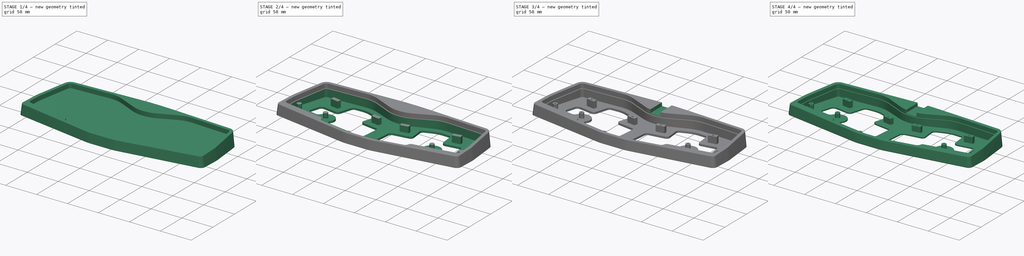
[diagram: build sequence overview — one tinted view per stage of 4, left to right]
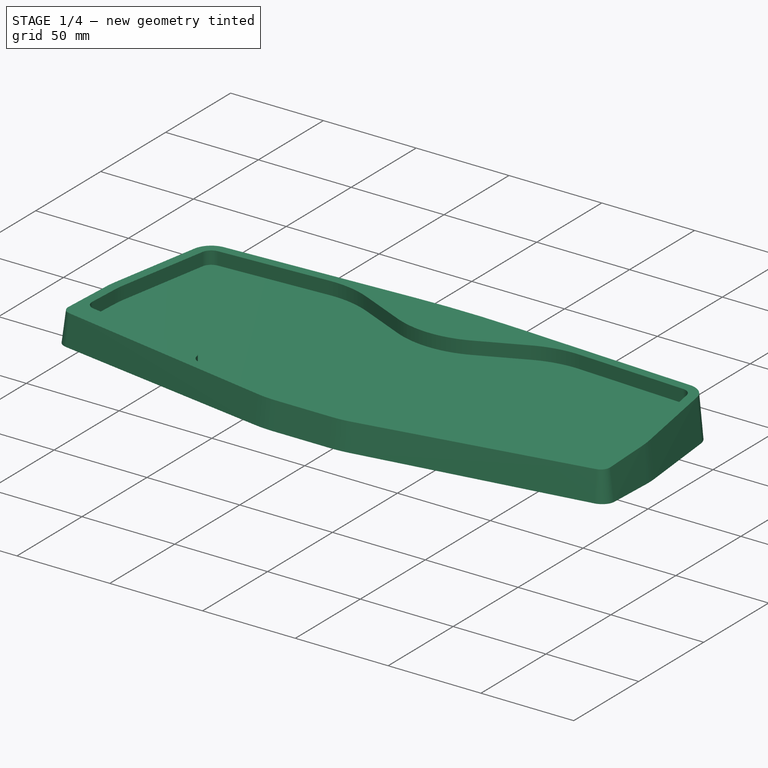
[diagram: stage 1 of 4 — iso view after this stage's code; geometry added in this stage tinted green]
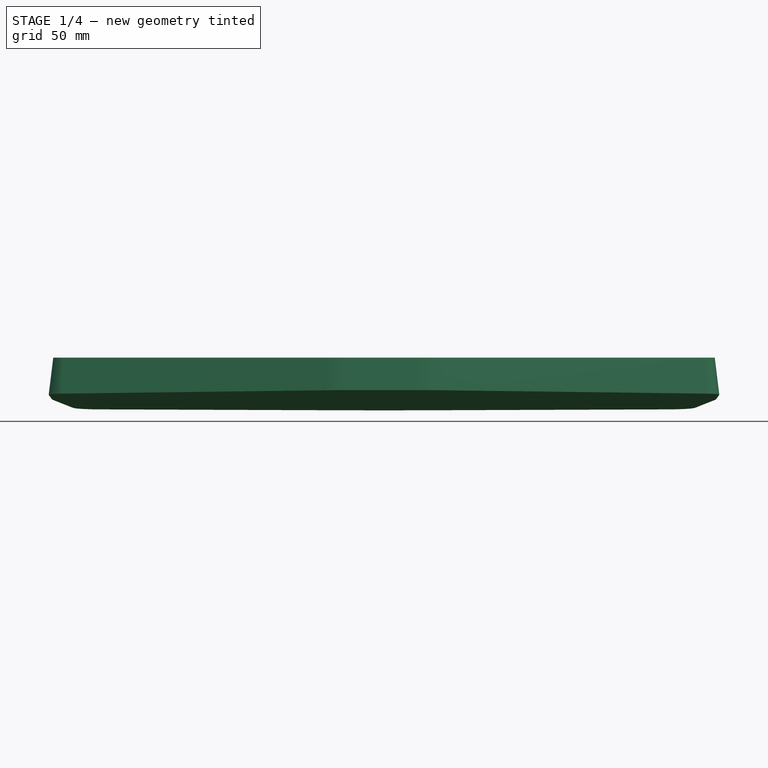
[diagram: stage 1 of 4 — front view after this stage's code; geometry added in this stage tinted green]
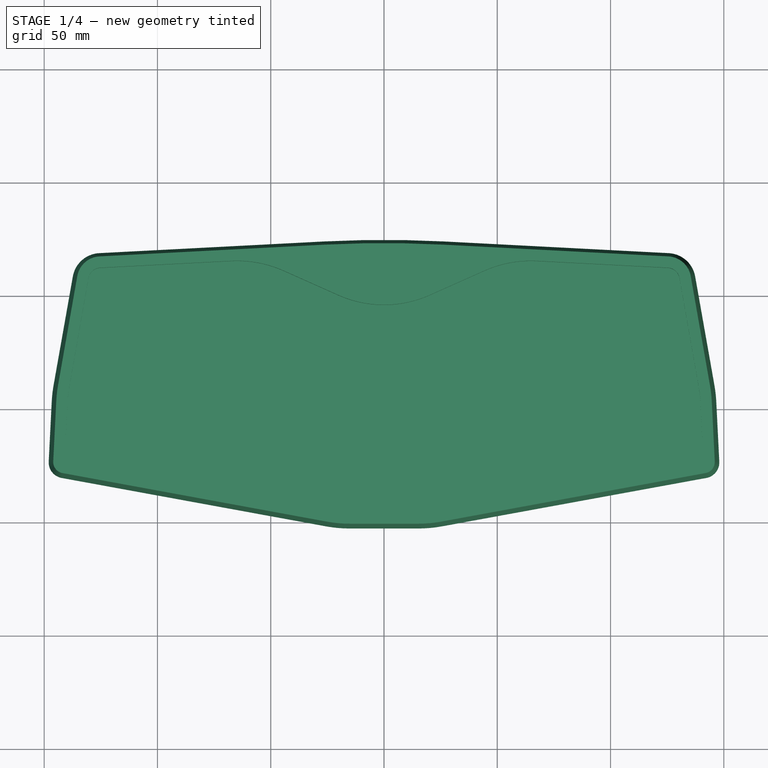
[diagram: stage 1 of 4 — top view after this stage's code; geometry added in this stage tinted green]
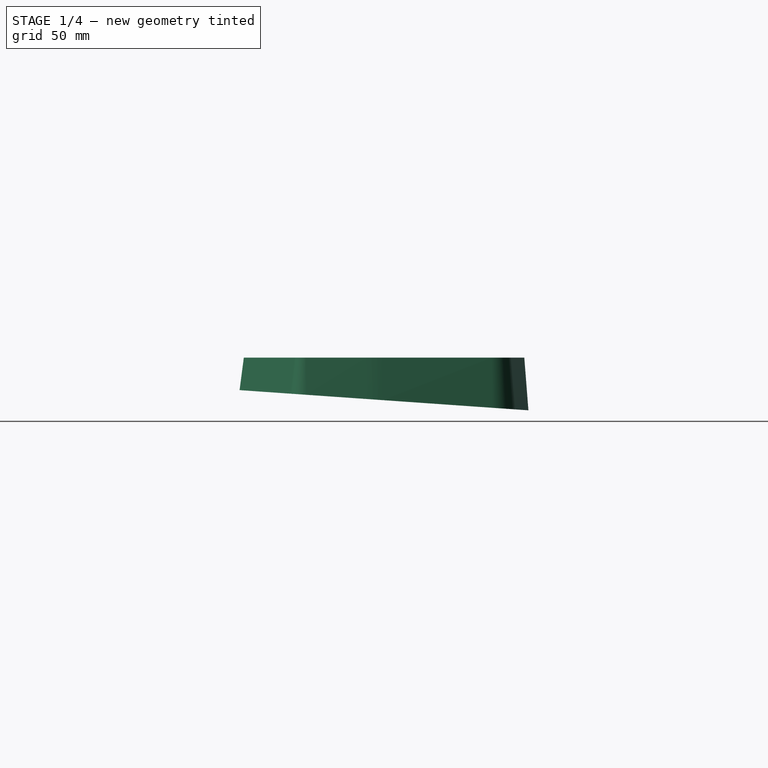
[diagram: stage 1 of 4 — right view after this stage's code; geometry added in this stage tinted green]
FCSTD DOCUMENT  (FreeCAD 0.20R)
Label: case.v2
License: All rights reserved
LicenseURL: http://en.wikipedia.org/wiki/All_rights_reserved
objects: Sketcher::SketchObject×9, PartDesign::Pocket×4, PartDesign::Fillet×2, PartDesign::AdditiveLoft×1, PartDesign::Hole×1, PartDesign::Chamfer×1, PartDesign::Body×1
note: 28 computed .brp shape members not serialized (recipe doc carries the construction recipe); baked Part::Feature solids carry a one-line shape summary decoded from their .brp

FEATURE [Sketcher::SketchObject] Sketch  label="ext3"
  AttachmentOffset = pos=(0,0,0) rot=(1,0,0;-0.069813rad)
  FullyConstrained = false
  MapMode = 5
  Placement = pos=(0,0,0) rot=(1,0,0;6.21337rad)
  Support = -> [XY_Plane]
  sketch-geometry (18):
    g0: ArcOfCircle CenterX=-125.032 CenterY=56.6946 CenterZ=0 NormalX=0 NormalY=0 NormalZ=1 AngleXU=0 Radius=12.5 StartAngle=1.6229 EndAngle=2.96706
    g1: ArcOfCircle CenterX=-9.095e-13 CenterY=-426.95 CenterZ=0 NormalX=0 NormalY=0 NormalZ=1 AngleXU=0 Radius=502 StartAngle=1.51869 EndAngle=1.6229
    g2: LineSegment StartX=125.683 StartY=69.1776 StartZ=0 EndX=26.1458 EndY=74.3689 EndZ=0
    g3: ArcOfCircle CenterX=125.032 CenterY=56.6946 CenterZ=0 NormalX=0 NormalY=0 NormalZ=1 AngleXU=0 Radius=12.5 StartAngle=0.174533 EndAngle=1.51869
    g4: LineSegment StartX=137.343 StartY=58.8652 StartZ=0 EndX=145.854 EndY=10.5931 EndZ=0
    g5: ArcOfCircle CenterX=89.2277 CenterY=0.608317 CenterZ=0 NormalX=0 NormalY=0 NormalZ=1 AngleXU=0 Radius=57.5 StartAngle=0.0501779 EndAngle=0.174533
    g6: LineSegment StartX=146.655 StartY=3.49234 StartZ=0 EndX=147.996 EndY=-23.2061 EndZ=0
    g7: ArcOfCircle CenterX=141.005 CenterY=-23.5572 CenterZ=0 NormalX=0 NormalY=0 NormalZ=1 AngleXU=0 Radius=7 StartAngle=4.8941 EndAngle=6.33336
    g8: LineSegment StartX=142.27 StartY=-30.442 StartZ=0 EndX=25.5858 EndY=-51.8809 EndZ=0
    g9: ArcOfCircle CenterX=15.195 CenterY=4.67242 CenterZ=0 NormalX=0 NormalY=0 NormalZ=1 AngleXU=0 Radius=57.5 StartAngle=4.71239 EndAngle=4.8941
    g10: LineSegment StartX=-15.195 StartY=-52.8276 StartZ=0 EndX=15.195 EndY=-52.8276 EndZ=0
    g11: ArcOfCircle CenterX=-15.195 CenterY=4.67242 CenterZ=0 NormalX=0 NormalY=0 NormalZ=1 AngleXU=0 Radius=57.5 StartAngle=4.53068 EndAngle=4.71239
    g12: LineSegment StartX=-142.27 StartY=-30.442 StartZ=0 EndX=-25.5858 EndY=-51.8809 EndZ=0
    g13: ArcOfCircle CenterX=-141.005 CenterY=-23.5572 CenterZ=0 NormalX=0 NormalY=0 NormalZ=1 AngleXU=0 Radius=7 StartAngle=3.09141 EndAngle=4.53068
    g14: LineSegment StartX=-146.655 StartY=3.49234 StartZ=0 EndX=-147.996 EndY=-23.2061 EndZ=0
    g15: ArcOfCircle CenterX=-89.2277 CenterY=0.608317 CenterZ=0 NormalX=0 NormalY=0 NormalZ=1 AngleXU=0 Radius=57.5 StartAngle=2.96706 EndAngle=3.09141
    g16: LineSegment StartX=-137.343 StartY=58.8652 StartZ=0 EndX=-145.854 EndY=10.5931 EndZ=0
    g17: LineSegment StartX=-125.683 StartY=69.1776 StartZ=0 EndX=-26.1458 EndY=74.3689 EndZ=0
  constraints (18):
    c: Coincident(g13,g14)
    c: Coincident(g14,g15)
    c: Coincident(g15,g16)
    c: Coincident(g12,g13)
    c: Coincident(g0,g16)
    c: Coincident(g0,g17)
    c: Coincident(g1,g17)
    c: Coincident(g11,g12)
    c: Coincident(g10,g11)
    c: Coincident(g9,g10)
    c: Coincident(g8,g9)
    c: Coincident(g1,g2)
    c: Coincident(g2,g3)
    c: Coincident(g3,g4)
    c: Coincident(g7,g8)
    c: Coincident(g4,g5)
    c: Coincident(g5,g6)
    c: Coincident(g6,g7)
FEATURE [Sketcher::SketchObject] Sketch003  label="ext2"
  AttachmentOffset = pos=(0,0,18) rot=(0,0,1;0rad)
  FullyConstrained = false
  MapMode = 5
  Placement = pos=(0,0,18) rot=(0,0,1;0rad)
  Support = -> [XY_Plane]
  sketch-geometry (18):
    g0: ArcOfCircle CenterX=15.195 CenterY=4.67242 CenterZ=0 NormalX=0 NormalY=0 NormalZ=1 AngleXU=0 Radius=55.5 StartAngle=4.71239 EndAngle=4.8941
    g1: ArcOfCircle CenterX=-9.095e-13 CenterY=-426.95 CenterZ=0 NormalX=0 NormalY=0 NormalZ=1 AngleXU=0 Radius=500 StartAngle=1.51869 EndAngle=1.6229
    g2: ArcOfCircle CenterX=89.2277 CenterY=0.608317 CenterZ=0 NormalX=0 NormalY=0 NormalZ=1 AngleXU=0 Radius=55.5 StartAngle=0.0501779 EndAngle=0.174533
    g3: LineSegment StartX=141.909 StartY=-28.4749 StartZ=0 EndX=25.2244 EndY=-49.9139 EndZ=0
    g4: LineSegment StartX=144.658 StartY=3.39202 StartZ=0 EndX=145.999 EndY=-23.3064 EndZ=0
    g5: ArcOfCircle CenterX=141.005 CenterY=-23.5572 CenterZ=0 NormalX=0 NormalY=0 NormalZ=1 AngleXU=0 Radius=5 StartAngle=4.8941 EndAngle=6.33336
    g6: LineSegment StartX=-144.658 StartY=3.39202 StartZ=0 EndX=-145.999 EndY=-23.3064 EndZ=0
    g7: LineSegment StartX=-141.909 StartY=-28.4749 StartZ=0 EndX=-25.2244 EndY=-49.9139 EndZ=0
    g8: ArcOfCircle CenterX=-141.005 CenterY=-23.5572 CenterZ=0 NormalX=0 NormalY=0 NormalZ=1 AngleXU=0 Radius=5 StartAngle=3.09141 EndAngle=4.53068
    g9: ArcOfCircle CenterX=-89.2277 CenterY=0.608317 CenterZ=0 NormalX=0 NormalY=0 NormalZ=1 AngleXU=0 Radius=55.5 StartAngle=2.96706 EndAngle=3.09141
    g10: ArcOfCircle CenterX=-15.195 CenterY=4.67242 CenterZ=0 NormalX=0 NormalY=0 NormalZ=1 AngleXU=0 Radius=55.5 StartAngle=4.53068 EndAngle=4.71239
    g11: ArcOfCircle CenterX=-125.032 CenterY=56.6946 CenterZ=0 NormalX=0 NormalY=0 NormalZ=1 AngleXU=0 Radius=10.5 StartAngle=1.6229 EndAngle=2.96706
    g12: LineSegment StartX=-135.373 StartY=58.5179 StartZ=0 EndX=-143.885 EndY=10.2458 EndZ=0
    g13: LineSegment StartX=-15.195 StartY=-50.8276 StartZ=0 EndX=15.195 EndY=-50.8276 EndZ=0
    g14: LineSegment StartX=135.373 StartY=58.5179 StartZ=0 EndX=143.885 EndY=10.2458 EndZ=0
    g15: ArcOfCircle CenterX=125.032 CenterY=56.6946 CenterZ=0 NormalX=0 NormalY=0 NormalZ=1 AngleXU=0 Radius=10.5 StartAngle=0.174533 EndAngle=1.51869
    g16: LineSegment StartX=-125.579 StartY=67.1803 StartZ=0 EndX=-26.0416 EndY=72.3716 EndZ=0
    g17: LineSegment StartX=125.579 StartY=67.1803 StartZ=0 EndX=26.0416 EndY=72.3716 EndZ=0
  constraints (18):
    c: Coincident(g6,g8)
    c: Coincident(g6,g9)
    c: Coincident(g9,g12)
    c: Coincident(g7,g8)
    c: Coincident(g11,g12)
    c: Coincident(g11,g16)
    c: Coincident(g1,g16)
    c: Coincident(g7,g10)
    c: Coincident(g10,g13)
    c: Coincident(g0,g13)
    c: Coincident(g0,g3)
    c: Coincident(g1,g17)
    c: Coincident(g15,g17)
    c: Coincident(g14,g15)
    c: Coincident(g3,g5)
    c: Coincident(g2,g14)
    c: Coincident(g2,g4)
    c: Coincident(g4,g5)
FEATURE [Sketcher::SketchObject] Sketch005  label="pcb"
  FullyConstrained = false
  sketch-geometry (28):
    g0: LineSegment StartX=-15.195 StartY=-45.3276 StartZ=0 EndX=15.195 EndY=-45.3276 EndZ=0
    g1: ArcOfCircle CenterX=-15.195 CenterY=4.67242 CenterZ=0 NormalX=0 NormalY=0 NormalZ=1 AngleXU=0 Radius=50 StartAngle=4.53068 EndAngle=4.71239
    g2: LineSegment StartX=-65.5479 StartY=-36.913 StartZ=0 EndX=-24.2305 EndY=-44.5044 EndZ=0
    g3: ArcOfCircle CenterX=-64.6443 CenterY=-31.9953 CenterZ=0 NormalX=0 NormalY=0 NormalZ=1 AngleXU=0 Radius=5 StartAngle=3.31596 EndAngle=4.53068
    g4: ArcOfCircle CenterX=-74.4927 CenterY=-33.7301 CenterZ=0 NormalX=0 NormalY=0 NormalZ=1 AngleXU=0 Radius=5 StartAngle=0.174368 EndAngle=1.39626
    g5: LineSegment StartX=-135.832 StartY=-17.8373 StartZ=0 EndX=-73.6244 EndY=-28.8061 EndZ=0
    g6: ArcOfCircle CenterX=-134.963 CenterY=-12.9132 CenterZ=0 NormalX=0 NormalY=0 NormalZ=1 AngleXU=0 Radius=5 StartAngle=3.09141 EndAngle=4.53786
    g7: LineSegment StartX=-139.165 StartY=3.11616 StartZ=0 EndX=-139.957 EndY=-12.6624 EndZ=0
    g8: ArcOfCircle CenterX=-89.2277 CenterY=0.608317 CenterZ=0 NormalX=0 NormalY=0 NormalZ=1 AngleXU=0 Radius=50 StartAngle=2.96706 EndAngle=3.09141
    g9: LineSegment StartX=-129.956 StartY=57.5628 StartZ=0 EndX=-138.468 EndY=9.29073 EndZ=0
    g10: ArcOfCircle CenterX=-125.032 CenterY=56.6946 CenterZ=0 NormalX=0 NormalY=0 NormalZ=1 AngleXU=0 Radius=5 StartAngle=1.6229 EndAngle=2.96706
    g11: LineSegment StartX=-125.293 StartY=61.6878 StartZ=0 EndX=-67.4879 EndY=64.7025 EndZ=0
    g12: ArcOfCircle CenterX=-64.8838 CenterY=14.7704 CenterZ=0 NormalX=0 NormalY=0 NormalZ=1 AngleXU=0 Radius=50 StartAngle=1.15128 EndAngle=1.6229
    g13: ArcOfCircle CenterX=15.195 CenterY=4.67242 CenterZ=0 NormalX=0 NormalY=0 NormalZ=1 AngleXU=0 Radius=50 StartAngle=4.71239 EndAngle=4.8941
    g14: LineSegment StartX=65.5479 StartY=-36.913 StartZ=0 EndX=24.2305 EndY=-44.5044 EndZ=0
    g15: ArcOfCircle CenterX=64.6443 CenterY=-31.9953 CenterZ=0 NormalX=0 NormalY=0 NormalZ=1 AngleXU=0 Radius=5 StartAngle=4.8941 EndAngle=6.10882
    g16: ArcOfCircle CenterX=74.4927 CenterY=-33.7301 CenterZ=0 NormalX=0 NormalY=0 NormalZ=1 AngleXU=0 Radius=5 StartAngle=1.74533 EndAngle=2.96723
    g17: LineSegment StartX=135.832 StartY=-17.8373 StartZ=0 EndX=73.6244 EndY=-28.8061 EndZ=0
    g18: ArcOfCircle CenterX=134.963 CenterY=-12.9132 CenterZ=0 NormalX=0 NormalY=0 NormalZ=1 AngleXU=0 Radius=5 StartAngle=4.88692 EndAngle=6.33336
    g19: LineSegment StartX=139.165 StartY=3.11616 StartZ=0 EndX=139.957 EndY=-12.6624 EndZ=0
    g20: ArcOfCircle CenterX=89.2277 CenterY=0.608317 CenterZ=0 NormalX=0 NormalY=0 NormalZ=1 AngleXU=0 Radius=50 StartAngle=0.0501779 EndAngle=0.174533
    g21: LineSegment StartX=129.956 StartY=57.5628 StartZ=0 EndX=138.468 EndY=9.29073 EndZ=0
    g22: ArcOfCircle CenterX=125.032 CenterY=56.6946 CenterZ=0 NormalX=0 NormalY=0 NormalZ=1 AngleXU=0 Radius=5 StartAngle=0.174533 EndAngle=1.51869
    g23: LineSegment StartX=125.293 StartY=61.6878 StartZ=0 EndX=67.4879 EndY=64.7025 EndZ=0
    g24: ArcOfCircle CenterX=64.8838 CenterY=14.7704 CenterZ=0 NormalX=0 NormalY=0 NormalZ=1 AngleXU=0 Radius=50 StartAngle=1.51869 EndAngle=1.99031
    g25: LineSegment StartX=-20.3657 StartY=49.6632 StartZ=0 EndX=-44.518 EndY=60.4348 EndZ=0
    g26: LineSegment StartX=20.3657 StartY=49.6632 StartZ=0 EndX=44.518 EndY=60.4348 EndZ=0
    g27: ArcOfCircle CenterX=0 CenterY=95.3276 CenterZ=0 NormalX=0 NormalY=0 NormalZ=1 AngleXU=0 Radius=50 StartAngle=4.29288 EndAngle=5.1319
  constraints (28):
    c: Coincident(g6,g7)
    c: Coincident(g7,g8)
    c: Coincident(g8,g9)
    c: Coincident(g5,g6)
    c: Coincident(g9,g10)
    c: Coincident(g10,g11)
    c: Coincident(g4,g5)
    c: Coincident(g3,g4)
    c: Coincident(g11,g12)
    c: Coincident(g2,g3)
    c: Coincident(g12,g25)
    c: Coincident(g1,g2)
    c: Coincident(g25,g27)
    c: Coincident(g0,g1)
    c: Coincident(g0,g13)
    c: Coincident(g26,g27)
    c: Coincident(g13,g14)
    c: Coincident(g24,g26)
    c: Coincident(g14,g15)
    c: Coincident(g23,g24)
    c: Coincident(g15,g16)
    c: Coincident(g16,g17)
    c: Coincident(g22,g23)
    c: Coincident(g21,g22)
    c: Coincident(g17,g18)
    c: Coincident(g20,g21)
    c: Coincident(g19,g20)
    c: Coincident(g18,g19)
FEATURE [PartDesign::AdditiveLoft] AdditiveLoft
  Closed = true
  Profile = -> Sketch
  Ruled = true
  Sections = -> [Sketch003]
FEATURE [Sketcher::SketchObject] Sketch004  label="ext1"
  FullyConstrained = false
  MapMode = 5
  Placement = pos=(0,0,18) rot=(0,0,1;0rad)
  Support = -> [AdditiveLoft]
  sketch-geometry (28):
    g0: LineSegment StartX=-20.1621 StartY=50.1198 StartZ=0 EndX=-44.3144 EndY=60.8914 EndZ=0
    g1: ArcOfCircle CenterX=-15.195 CenterY=4.67242 CenterZ=0 NormalX=0 NormalY=0 NormalZ=1 AngleXU=0 Radius=50.5 StartAngle=4.53068 EndAngle=4.71239
    g2: LineSegment StartX=-65.6382 StartY=-37.4047 StartZ=0 EndX=-24.3208 EndY=-44.9962 EndZ=0
    g3: ArcOfCircle CenterX=-64.6443 CenterY=-31.9953 CenterZ=0 NormalX=0 NormalY=0 NormalZ=1 AngleXU=0 Radius=5.5 StartAngle=3.31596 EndAngle=4.53068
    g4: ArcOfCircle CenterX=-74.4927 CenterY=-33.7301 CenterZ=0 NormalX=0 NormalY=0 NormalZ=1 AngleXU=0 Radius=4.5 StartAngle=0.174368 EndAngle=1.39626
    g5: LineSegment StartX=-135.919 StartY=-18.3297 StartZ=0 EndX=-73.7113 EndY=-29.2985 EndZ=0
    g6: ArcOfCircle CenterX=-134.963 CenterY=-12.9132 CenterZ=0 NormalX=0 NormalY=0 NormalZ=1 AngleXU=0 Radius=5.5 StartAngle=3.09141 EndAngle=4.53786
    g7: LineSegment StartX=-139.664 StartY=3.14124 StartZ=0 EndX=-140.457 EndY=-12.6374 EndZ=0
    g8: ArcOfCircle CenterX=-89.2277 CenterY=0.608317 CenterZ=0 NormalX=0 NormalY=0 NormalZ=1 AngleXU=0 Radius=50.5 StartAngle=2.96706 EndAngle=3.09141
    g9: LineSegment StartX=-130.449 StartY=57.6496 StartZ=0 EndX=-138.961 EndY=9.37755 EndZ=0
    g10: ArcOfCircle CenterX=-125.032 CenterY=56.6946 CenterZ=0 NormalX=0 NormalY=0 NormalZ=1 AngleXU=0 Radius=5.5 StartAngle=1.6229 EndAngle=2.96706
    g11: LineSegment StartX=-125.319 StartY=62.1871 StartZ=0 EndX=-67.514 EndY=65.2019 EndZ=0
    g12: ArcOfCircle CenterX=-64.8838 CenterY=14.7704 CenterZ=0 NormalX=0 NormalY=0 NormalZ=1 AngleXU=0 Radius=50.5 StartAngle=1.15128 EndAngle=1.6229
    g13: LineSegment StartX=125.319 StartY=62.1871 StartZ=0 EndX=67.514 EndY=65.2019 EndZ=0
    g14: ArcOfCircle CenterX=125.032 CenterY=56.6946 CenterZ=0 NormalX=0 NormalY=0 NormalZ=1 AngleXU=0 Radius=5.5 StartAngle=0.174533 EndAngle=1.51869
    g15: LineSegment StartX=130.449 StartY=57.6496 StartZ=0 EndX=138.961 EndY=9.37755 EndZ=0
    g16: ArcOfCircle CenterX=89.2277 CenterY=0.608317 CenterZ=0 NormalX=0 NormalY=0 NormalZ=1 AngleXU=0 Radius=50.5 StartAngle=0.0501779 EndAngle=0.174533
    g17: LineSegment StartX=139.664 StartY=3.14124 StartZ=0 EndX=140.457 EndY=-12.6374 EndZ=0
    g18: ArcOfCircle CenterX=134.963 CenterY=-12.9132 CenterZ=0 NormalX=0 NormalY=0 NormalZ=1 AngleXU=0 Radius=5.5 StartAngle=4.88692 EndAngle=6.33336
    g19: LineSegment StartX=135.919 StartY=-18.3297 StartZ=0 EndX=73.7113 EndY=-29.2985 EndZ=0
    g20: ArcOfCircle CenterX=74.4927 CenterY=-33.7301 CenterZ=0 NormalX=0 NormalY=0 NormalZ=1 AngleXU=0 Radius=4.5 StartAngle=1.74533 EndAngle=2.96723
    g21: ArcOfCircle CenterX=64.6443 CenterY=-31.9953 CenterZ=0 NormalX=0 NormalY=0 NormalZ=1 AngleXU=0 Radius=5.5 StartAngle=4.8941 EndAngle=6.10882
    g22: LineSegment StartX=65.6382 StartY=-37.4047 StartZ=0 EndX=24.3208 EndY=-44.9962 EndZ=0
    g23: ArcOfCircle CenterX=15.195 CenterY=4.67242 CenterZ=0 NormalX=0 NormalY=0 NormalZ=1 AngleXU=0 Radius=50.5 StartAngle=4.71239 EndAngle=4.8941
    g24: LineSegment StartX=-15.195 StartY=-45.8276 StartZ=0 EndX=15.195 EndY=-45.8276 EndZ=0
    g25: ArcOfCircle CenterX=64.8838 CenterY=14.7704 CenterZ=0 NormalX=0 NormalY=0 NormalZ=1 AngleXU=0 Radius=50.5 StartAngle=1.51869 EndAngle=1.99031
    g26: LineSegment StartX=20.1621 StartY=50.1198 StartZ=0 EndX=44.3144 EndY=60.8914 EndZ=0
    g27: ArcOfCircle CenterX=0 CenterY=95.3276 CenterZ=0 NormalX=0 NormalY=0 NormalZ=1 AngleXU=0 Radius=49.5 StartAngle=4.29288 EndAngle=5.1319
  constraints (28):
    c: Coincident(g6,g7)
    c: Coincident(g7,g8)
    c: Coincident(g8,g9)
    c: Coincident(g5,g6)
    c: Coincident(g9,g10)
    c: Coincident(g10,g11)
    c: Coincident(g4,g5)
    c: Coincident(g3,g4)
    c: Coincident(g11,g12)
    c: Coincident(g2,g3)
    c: Coincident(g0,g12)
    c: Coincident(g1,g2)
    c: Coincident(g0,g27)
    c: Coincident(g1,g24)
    c: Coincident(g23,g24)
    c: Coincident(g26,g27)
    c: Coincident(g22,g23)
    c: Coincident(g25,g26)
    c: Coincident(g21,g22)
    c: Coincident(g13,g25)
    c: Coincident(g20,g21)
    c: Coincident(g19,g20)
    c: Coincident(g13,g14)
    c: Coincident(g14,g15)
    c: Coincident(g18,g19)
    c: Coincident(g15,g16)
    c: Coincident(g16,g17)
    c: Coincident(g17,g18)
FEATURE [PartDesign::Pocket] Pocket
  BaseFeature = -> AdditiveLoft
  Direction = (0,0,-1)
  Length = 7
  Length2 = 5
  Profile = -> Sketch004
  ReferenceAxis = -> Sketch004 [N_Axis]
  Type = 0
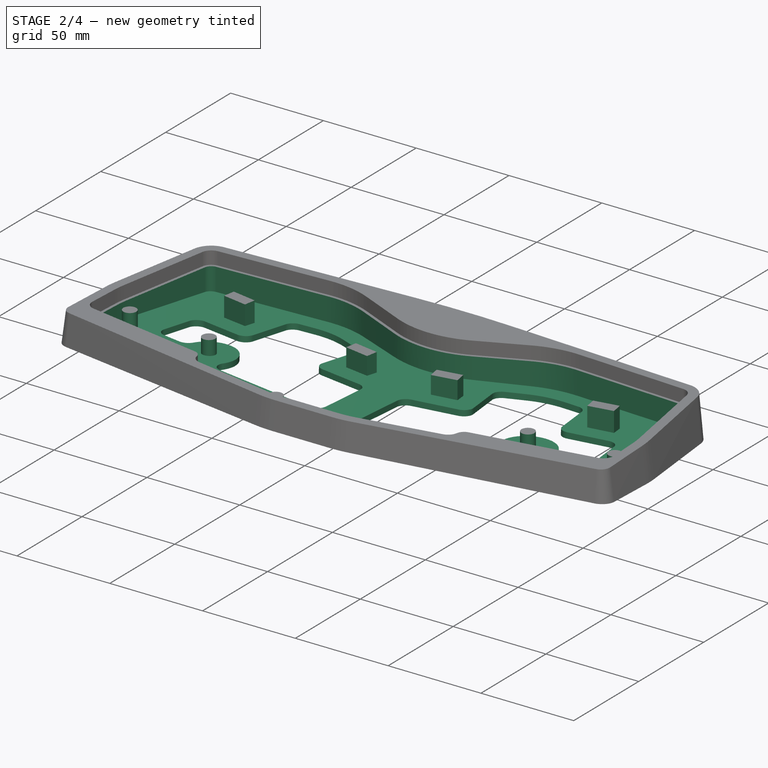
[diagram: stage 2 of 4 — iso view after this stage's code; geometry added in this stage tinted green]
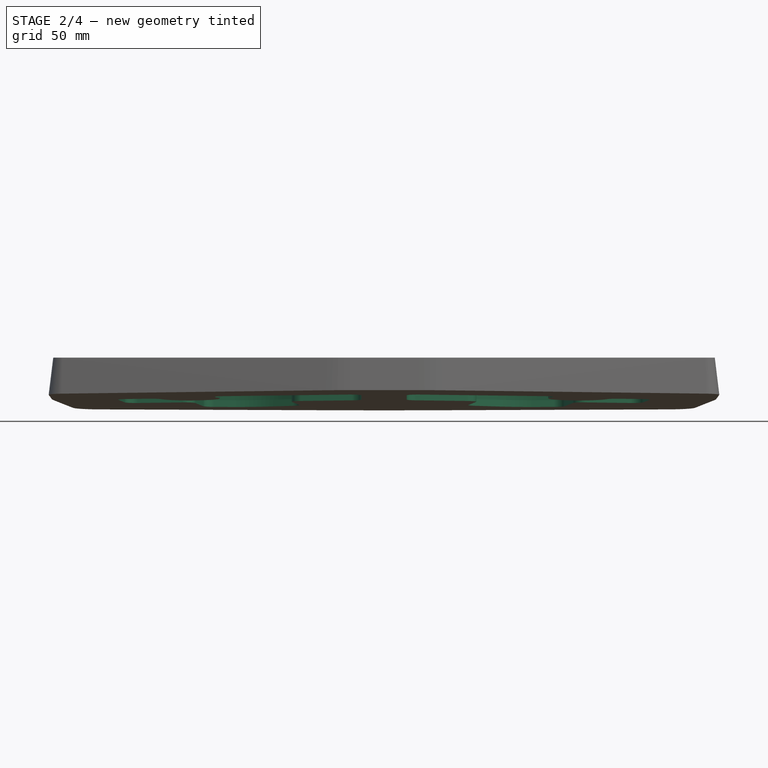
[diagram: stage 2 of 4 — front view after this stage's code; geometry added in this stage tinted green]
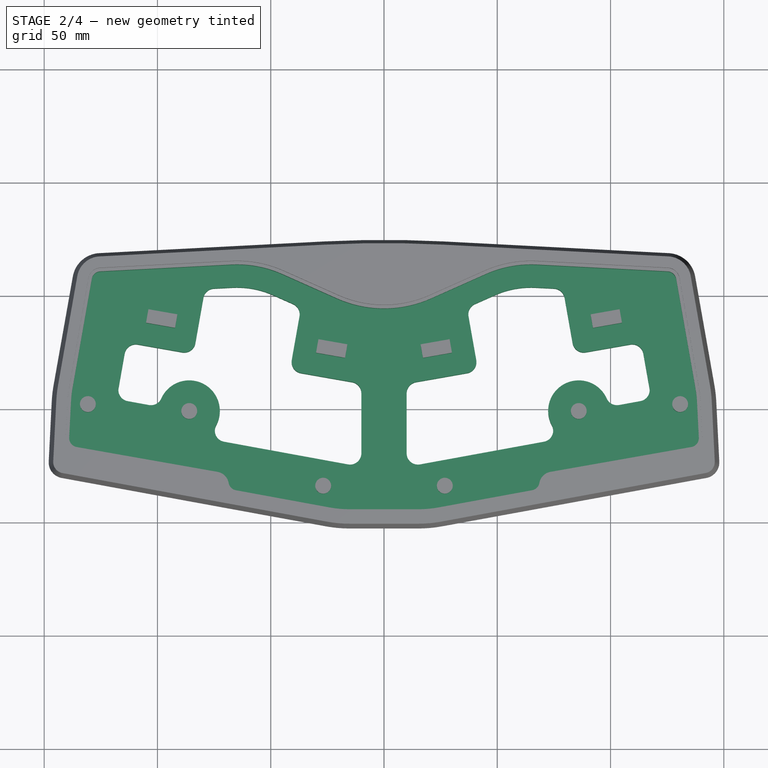
[diagram: stage 2 of 4 — top view after this stage's code; geometry added in this stage tinted green]
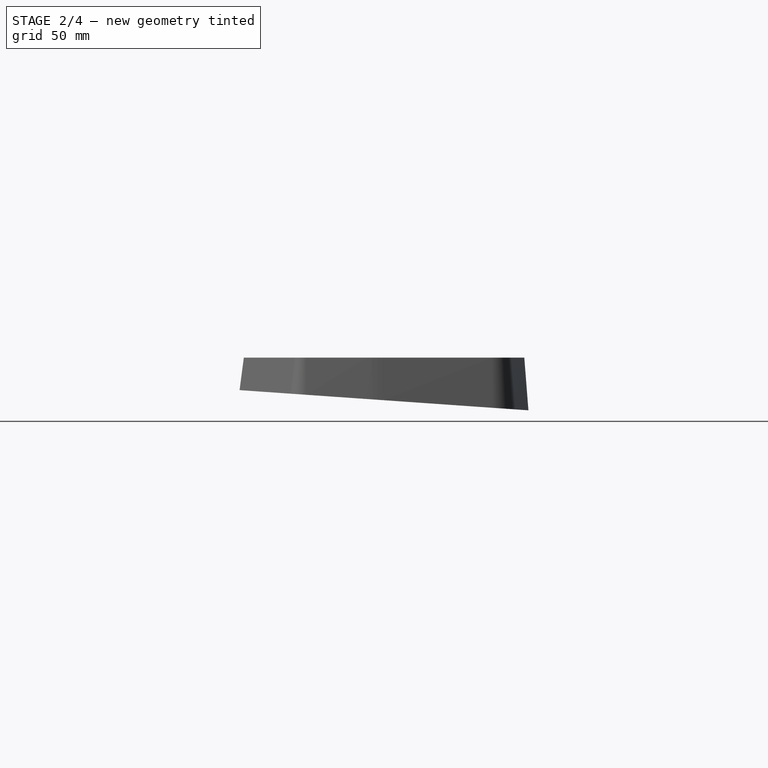
[diagram: stage 2 of 4 — right view after this stage's code; geometry added in this stage tinted green]
FEATURE [Sketcher::SketchObject] Sketch002  label="decoupe-supports"
  FullyConstrained = false
  MapMode = 5
  Placement = pos=(0,0,11) rot=(0,0,1;0rad)
  Support = -> [Pocket]
  sketch-geometry (50):
    g0: Circle CenterX=130.715 CenterY=2.10212 CenterZ=0 NormalX=0 NormalY=0 NormalZ=-1 AngleXU=0 Radius=3.5
    g1: LineSegment StartX=125.241 StartY=60.6891 StartZ=0 EndX=67.4358 EndY=63.7039 EndZ=0
    g2: ArcOfCircle CenterX=125.032 CenterY=56.6946 CenterZ=0 NormalX=0 NormalY=0 NormalZ=1 AngleXU=0 Radius=4 StartAngle=0.174533 EndAngle=1.51869
    g3: LineSegment StartX=128.972 StartY=57.3892 StartZ=0 EndX=137.483 EndY=9.11708 EndZ=0
    g4: ArcOfCircle CenterX=89.2277 CenterY=0.608317 CenterZ=0 NormalX=0 NormalY=0 NormalZ=1 AngleXU=0 Radius=49 StartAngle=0.0501779 EndAngle=0.174533
    g5: LineSegment StartX=138.166 StartY=3.066 StartZ=0 EndX=138.958 EndY=-12.7126 EndZ=0
    g6: ArcOfCircle CenterX=134.963 CenterY=-12.9132 CenterZ=0 NormalX=0 NormalY=0 NormalZ=1 AngleXU=0 Radius=4 StartAngle=4.88692 EndAngle=6.33336
    g7: LineSegment StartX=135.658 StartY=-16.8525 StartZ=0 EndX=73.4508 EndY=-27.8213 EndZ=0
    g8: ArcOfCircle CenterX=74.4927 CenterY=-33.7301 CenterZ=0 NormalX=0 NormalY=0 NormalZ=1 AngleXU=0 Radius=6 StartAngle=1.74533 EndAngle=2.96723
    g9: ArcOfCircle CenterX=64.6443 CenterY=-31.9953 CenterZ=0 NormalX=0 NormalY=0 NormalZ=1 AngleXU=0 Radius=4 StartAngle=4.8941 EndAngle=6.10882
    g10: LineSegment StartX=65.3672 StartY=-35.9294 StartZ=0 EndX=24.0498 EndY=-43.5209 EndZ=0
    g11: ArcOfCircle CenterX=15.195 CenterY=4.67242 CenterZ=0 NormalX=0 NormalY=0 NormalZ=1 AngleXU=0 Radius=49 StartAngle=4.71239 EndAngle=4.8941
    g12: LineSegment StartX=-15.195 StartY=-44.3276 StartZ=0 EndX=15.195 EndY=-44.3276 EndZ=0
    g13: ArcOfCircle CenterX=-15.195 CenterY=4.67242 CenterZ=0 NormalX=0 NormalY=0 NormalZ=1 AngleXU=0 Radius=49 StartAngle=4.53068 EndAngle=4.71239
    g14: LineSegment StartX=-65.3672 StartY=-35.9294 StartZ=0 EndX=-24.0498 EndY=-43.5209 EndZ=0
    g15: ArcOfCircle CenterX=-64.6443 CenterY=-31.9953 CenterZ=0 NormalX=0 NormalY=0 NormalZ=1 AngleXU=0 Radius=4 StartAngle=3.31596 EndAngle=4.53068
    g16: ArcOfCircle CenterX=-74.4927 CenterY=-33.7301 CenterZ=0 NormalX=0 NormalY=0 NormalZ=1 AngleXU=0 Radius=6 StartAngle=0.174368 EndAngle=1.39626
    g17: LineSegment StartX=-135.658 StartY=-16.8525 StartZ=0 EndX=-73.4508 EndY=-27.8213 EndZ=0
    g18: ArcOfCircle CenterX=-134.963 CenterY=-12.9132 CenterZ=0 NormalX=0 NormalY=0 NormalZ=1 AngleXU=0 Radius=4 StartAngle=3.09141 EndAngle=4.53786
    g19: LineSegment StartX=-138.166 StartY=3.066 StartZ=0 EndX=-138.958 EndY=-12.7126 EndZ=0
    g20: ArcOfCircle CenterX=-89.2277 CenterY=0.608317 CenterZ=0 NormalX=0 NormalY=0 NormalZ=1 AngleXU=0 Radius=49 StartAngle=2.96706 EndAngle=3.09141
    g21: LineSegment StartX=-128.972 StartY=57.3892 StartZ=0 EndX=-137.483 EndY=9.11708 EndZ=0
    g22: ArcOfCircle CenterX=-125.032 CenterY=56.6946 CenterZ=0 NormalX=0 NormalY=0 NormalZ=1 AngleXU=0 Radius=4 StartAngle=1.6229 EndAngle=2.96706
    g23: Circle CenterX=-130.715 CenterY=2.10212 CenterZ=0 NormalX=0 NormalY=0 NormalZ=-1 AngleXU=0 Radius=3.5
    g24: Circle CenterX=-85.9654 CenterY=-0.952441 CenterZ=0 NormalX=0 NormalY=0 NormalZ=-1 AngleXU=0 Radius=3.5
    g25: Circle CenterX=-26.8409 CenterY=-33.9213 CenterZ=0 NormalX=0 NormalY=0 NormalZ=-1 AngleXU=0 Radius=3.5
    g26: Circle CenterX=26.8409 CenterY=-33.9213 CenterZ=0 NormalX=0 NormalY=0 NormalZ=-1 AngleXU=0 Radius=3.5
    g27: Circle CenterX=85.9654 CenterY=-0.952441 CenterZ=0 NormalX=0 NormalY=0 NormalZ=-1 AngleXU=0 Radius=3.5
    g28: ArcOfCircle CenterX=-64.8838 CenterY=14.7704 CenterZ=0 NormalX=0 NormalY=0 NormalZ=1 AngleXU=0 Radius=49 StartAngle=1.15128 EndAngle=1.6229
    g29: LineSegment StartX=-20.773 StartY=48.7499 StartZ=0 EndX=-44.9253 EndY=59.5215 EndZ=0
    g30: ArcOfCircle CenterX=0 CenterY=95.3276 CenterZ=0 NormalX=0 NormalY=0 NormalZ=1 AngleXU=0 Radius=51 StartAngle=4.29288 EndAngle=5.1319
    g31: LineSegment StartX=20.773 StartY=48.7499 StartZ=0 EndX=44.9253 EndY=59.5215 EndZ=0
    g32: ArcOfCircle CenterX=64.8838 CenterY=14.7704 CenterZ=0 NormalX=0 NormalY=0 NormalZ=1 AngleXU=0 Radius=49 StartAngle=1.51869 EndAngle=1.99031
    g33: LineSegment StartX=-125.241 StartY=60.6891 StartZ=0 EndX=-67.4358 EndY=63.7039 EndZ=0
    g34: LineSegment StartX=-28.9437 StartY=30.7525 StartZ=0 EndX=-16.1412 EndY=28.4951 EndZ=0
    g35: LineSegment StartX=-16.1412 StartY=28.4951 StartZ=0 EndX=-17.1917 EndY=22.537 EndZ=0
    g36: LineSegment StartX=-17.1917 StartY=22.537 StartZ=0 EndX=-29.9942 EndY=24.7944 EndZ=0
    g37: LineSegment StartX=-29.9942 StartY=24.7944 StartZ=0 EndX=-28.9437 EndY=30.7525 EndZ=0
    g38: LineSegment StartX=-103.986 StartY=43.9845 StartZ=0 EndX=-91.1835 EndY=41.7271 EndZ=0
    g39: LineSegment StartX=-91.1835 StartY=41.7271 StartZ=0 EndX=-92.2341 EndY=35.769 EndZ=0
    g40: LineSegment StartX=-92.2341 StartY=35.769 StartZ=0 EndX=-105.037 EndY=38.0264 EndZ=0
    g41: LineSegment StartX=-105.037 StartY=38.0264 StartZ=0 EndX=-103.986 EndY=43.9845 EndZ=0
    g42: LineSegment StartX=28.9437 StartY=30.7525 StartZ=0 EndX=16.1412 EndY=28.4951 EndZ=0
    g43: LineSegment StartX=16.1412 StartY=28.4951 StartZ=0 EndX=17.1917 EndY=22.537 EndZ=0
    g44: LineSegment StartX=17.1917 StartY=22.537 StartZ=0 EndX=29.9942 EndY=24.7944 EndZ=0
    g45: LineSegment StartX=29.9942 StartY=24.7944 StartZ=0 EndX=28.9437 EndY=30.7525 EndZ=0
    g46: LineSegment StartX=103.986 StartY=43.9845 StartZ=0 EndX=91.1835 EndY=41.7271 EndZ=0
    g47: LineSegment StartX=91.1835 StartY=41.7271 StartZ=0 EndX=92.2341 EndY=35.769 EndZ=0
    g48: LineSegment StartX=92.2341 StartY=35.769 StartZ=0 EndX=105.037 EndY=38.0264 EndZ=0
    g49: LineSegment StartX=105.037 StartY=38.0264 StartZ=0 EndX=103.986 EndY=43.9845 EndZ=0
  constraints (44):
    c: Coincident(g18,g19)
    c: Coincident(g19,g20)
    c: Coincident(g20,g21)
    c: Coincident(g17,g18)
    c: Coincident(g21,g22)
    c: Coincident(g22,g33)
    c: Coincident(g40,g41)
    c: Coincident(g38,g41)
    c: Coincident(g39,g40)
    c: Coincident(g38,g39)
    c: Coincident(g16,g17)
    c: Coincident(g15,g16)
    c: Coincident(g28,g33)
    c: Coincident(g14,g15)
    c: Coincident(g28,g29)
    c: Coincident(g36,g37)
    c: Coincident(g34,g37)
    c: Coincident(g13,g14)
    c: Coincident(g29,g30)
    c: Coincident(g35,g36)
    c: Coincident(g34,g35)
    c: Coincident(g12,g13)
    c: Coincident(g11,g12)
    c: Coincident(g42,g43)
    c: Coincident(g43,g44)
    c: Coincident(g30,g31)
    c: Coincident(g10,g11)
    c: Coincident(g42,g45)
    c: Coincident(g44,g45)
    c: Coincident(g31,g32)
    c: Coincident(g9,g10)
    c: Coincident(g1,g32)
    c: Coincident(g8,g9)
    c: Coincident(g7,g8)
    c: Coincident(g46,g47)
    c: Coincident(g47,g48)
    c: Coincident(g46,g49)
    c: Coincident(g48,g49)
    c: Coincident(g1,g2)
    c: Coincident(g2,g3)
    c: Coincident(g6,g7)
    c: Coincident(g3,g4)
    c: Coincident(g4,g5)
    c: Coincident(g5,g6)
FEATURE [PartDesign::Pocket] Pocket001
  BaseFeature = -> Pocket
  Direction = (0,0,-1)
  Length = 0
  Length2 = 5
  Offset = -3
  Profile = -> Sketch002
  ReferenceAxis = -> Sketch002 [N_Axis]
  Type = 3
  UpToFace = -> Pocket [Face1]
FEATURE [Sketcher::SketchObject] Sketch001  label="decoupe-int"
  FullyConstrained = false
  MapMode = 5
  Placement = pos=(0,0.20876,2.9854) rot=(-1,0,0;0.069813rad)
  Support = -> [Pocket001]
  sketch-geometry (44):
    g0: ArcOfCircle CenterX=-64.8838 CenterY=14.7704 CenterZ=0 NormalX=0 NormalY=0 NormalZ=1 AngleXU=0 Radius=39 StartAngle=1.15128 EndAngle=1.6229
    g1: ArcOfCircle CenterX=-112.247 CenterY=8.26991 CenterZ=0 NormalX=0 NormalY=0 NormalZ=1 AngleXU=0 Radius=5 StartAngle=2.96706 EndAngle=4.53068
    g2: ArcOfCircle CenterX=-15 CenterY=6.91913 CenterZ=0 NormalX=0 NormalY=0 NormalZ=1 AngleXU=0 Radius=5 StartAngle=0 EndAngle=1.39626
    g3: LineSegment StartX=-14.1318 StartY=11.8432 StartZ=0 EndX=-36.6547 EndY=15.8146 EndZ=0
    g4: ArcOfCircle CenterX=-35.7865 CenterY=20.7386 CenterZ=0 NormalX=0 NormalY=0 NormalZ=1 AngleXU=0 Radius=5 StartAngle=2.96706 EndAngle=4.53786
    g5: LineSegment StartX=-40.7105 StartY=21.6069 StartZ=0 EndX=-37.2877 EndY=41.0189 EndZ=0
    g6: LineSegment StartX=-40.1751 StartY=46.4535 StartZ=0 EndX=-48.9985 EndY=50.3886 EndZ=0
    g7: ArcOfCircle CenterX=-42.2117 CenterY=41.8871 CenterZ=0 NormalX=0 NormalY=0 NormalZ=1 AngleXU=0 Radius=5 StartAngle=6.10865 EndAngle=7.43447
    g8: LineSegment StartX=-75.0536 StartY=53.293 StartZ=0 EndX=-66.915 EndY=53.7175 EndZ=0
    g9: ArcOfCircle CenterX=-74.7932 CenterY=48.2998 CenterZ=0 NormalX=0 NormalY=0 NormalZ=1 AngleXU=0 Radius=5 StartAngle=1.6229 EndAngle=2.96706
    g10: LineSegment StartX=-79.7172 StartY=49.168 StartZ=0 EndX=-83.2542 EndY=29.1085 EndZ=0
    g11: ArcOfCircle CenterX=-88.1783 CenterY=29.9767 CenterZ=0 NormalX=0 NormalY=0 NormalZ=1 AngleXU=0 Radius=5 StartAngle=4.53786 EndAngle=6.10865
    g12: LineSegment StartX=-89.0465 StartY=25.0527 StartZ=0 EndX=-108.677 EndY=28.5141 EndZ=0
    g13: LineSegment StartX=-114.47 StartY=24.4583 StartZ=0 EndX=-117.171 EndY=9.13815 EndZ=0
    g14: ArcOfCircle CenterX=-109.546 CenterY=23.5901 CenterZ=0 NormalX=0 NormalY=0 NormalZ=1 AngleXU=0 Radius=5 StartAngle=1.39626 EndAngle=2.96706
    g15: LineSegment StartX=-113.151 StartY=3.35223 StartZ=0 EndX=-103.78 EndY=1.63057 EndZ=0
    g16: ArcOfCircle CenterX=-102.877 CenterY=6.54825 CenterZ=0 NormalX=0 NormalY=0 NormalZ=1 AngleXU=0 Radius=5 StartAngle=4.53068 EndAngle=5.86572
    g17: ArcOfCircle CenterX=-69.6747 CenterY=-9.7195 CenterZ=0 NormalX=0 NormalY=0 NormalZ=1 AngleXU=0 Radius=5 StartAngle=2.64788 EndAngle=4.53068
    g18: LineSegment StartX=-70.5782 StartY=-14.6372 StartZ=0 EndX=-15.9035 EndY=-24.6828 EndZ=0
    g19: LineSegment StartX=-10 StartY=6.91913 StartZ=0 EndX=-10 EndY=-19.7651 EndZ=0
    g20: ArcOfCircle CenterX=-15 CenterY=-19.7651 CenterZ=0 NormalX=0 NormalY=0 NormalZ=1 AngleXU=0 Radius=5 StartAngle=4.53068 EndAngle=6.28319
    g21: ArcOfCircle CenterX=-85.9654 CenterY=-0.952441 CenterZ=0 NormalX=0 NormalY=0 NormalZ=1 AngleXU=0 Radius=13.5 StartAngle=5.78948 EndAngle=9.00731
    g22: ArcOfCircle CenterX=64.8838 CenterY=14.7704 CenterZ=0 NormalX=0 NormalY=0 NormalZ=1 AngleXU=0 Radius=39 StartAngle=1.51869 EndAngle=1.99031
    g23: ArcOfCircle CenterX=112.247 CenterY=8.26991 CenterZ=0 NormalX=0 NormalY=0 NormalZ=1 AngleXU=0 Radius=5 StartAngle=4.8941 EndAngle=6.45772
    g24: ArcOfCircle CenterX=15 CenterY=6.91913 CenterZ=0 NormalX=0 NormalY=0 NormalZ=1 AngleXU=0 Radius=5 StartAngle=1.74533 EndAngle=3.14159
    g25: LineSegment StartX=14.1318 StartY=11.8432 StartZ=0 EndX=36.6547 EndY=15.8146 EndZ=0
    g26: ArcOfCircle CenterX=35.7865 CenterY=20.7386 CenterZ=0 NormalX=0 NormalY=0 NormalZ=1 AngleXU=0 Radius=5 StartAngle=4.88692 EndAngle=6.45772
    g27: LineSegment StartX=40.7105 StartY=21.6069 StartZ=0 EndX=37.2877 EndY=41.0189 EndZ=0
    g28: LineSegment StartX=40.1751 StartY=46.4535 StartZ=0 EndX=48.9985 EndY=50.3886 EndZ=0
    g29: ArcOfCircle CenterX=42.2117 CenterY=41.8871 CenterZ=0 NormalX=0 NormalY=0 NormalZ=1 AngleXU=0 Radius=5 StartAngle=1.99031 EndAngle=3.31613
    g30: LineSegment StartX=75.0536 StartY=53.293 StartZ=0 EndX=66.915 EndY=53.7175 EndZ=0
    g31: ArcOfCircle CenterX=74.7932 CenterY=48.2998 CenterZ=0 NormalX=0 NormalY=0 NormalZ=1 AngleXU=0 Radius=5 StartAngle=0.174533 EndAngle=1.51869
    g32: LineSegment StartX=79.7172 StartY=49.168 StartZ=0 EndX=83.2542 EndY=29.1085 EndZ=0
    g33: ArcOfCircle CenterX=88.1783 CenterY=29.9767 CenterZ=0 NormalX=0 NormalY=0 NormalZ=1 AngleXU=0 Radius=5 StartAngle=3.31613 EndAngle=4.88692
    g34: LineSegment StartX=89.0465 StartY=25.0527 StartZ=0 EndX=108.677 EndY=28.5141 EndZ=0
    g35: LineSegment StartX=114.47 StartY=24.4583 StartZ=0 EndX=117.171 EndY=9.13815 EndZ=0
    g36: ArcOfCircle CenterX=109.546 CenterY=23.5901 CenterZ=0 NormalX=0 NormalY=0 NormalZ=1 AngleXU=0 Radius=5 StartAngle=0.174533 EndAngle=1.74533
    g37: LineSegment StartX=113.151 StartY=3.35223 StartZ=0 EndX=103.78 EndY=1.63057 EndZ=0
    g38: ArcOfCircle CenterX=102.877 CenterY=6.54825 CenterZ=0 NormalX=0 NormalY=0 NormalZ=1 AngleXU=0 Radius=5 StartAngle=3.55906 EndAngle=4.8941
    g39: ArcOfCircle CenterX=69.6747 CenterY=-9.7195 CenterZ=0 NormalX=0 NormalY=0 NormalZ=1 AngleXU=0 Radius=5 StartAngle=4.8941 EndAngle=6.77689
    g40: LineSegment StartX=70.5782 StartY=-14.6372 StartZ=0 EndX=15.9035 EndY=-24.6828 EndZ=0
    g41: LineSegment StartX=10 StartY=6.91913 StartZ=0 EndX=10 EndY=-19.7651 EndZ=0
    g42: ArcOfCircle CenterX=15 CenterY=-19.7651 CenterZ=0 NormalX=0 NormalY=0 NormalZ=1 AngleXU=0 Radius=5 StartAngle=3.14159 EndAngle=4.8941
    g43: ArcOfCircle CenterX=85.9654 CenterY=-0.952441 CenterZ=0 NormalX=0 NormalY=0 NormalZ=1 AngleXU=0 Radius=13.5 StartAngle=0.417463 EndAngle=3.6353
  constraints (44):
    c: Coincident(g1,g13)
    c: Coincident(g13,g14)
    c: Coincident(g1,g15)
    c: Coincident(g12,g14)
    c: Coincident(g15,g16)
    c: Coincident(g16,g21)
    c: Coincident(g11,g12)
    c: Coincident(g10,g11)
    c: Coincident(g9,g10)
    c: Coincident(g8,g9)
    c: Coincident(g17,g21)
    c: Coincident(g17,g18)
    c: Coincident(g0,g8)
    c: Coincident(g0,g6)
    c: Coincident(g4,g5)
    c: Coincident(g6,g7)
    c: Coincident(g5,g7)
    c: Coincident(g3,g4)
    c: Coincident(g18,g20)
    c: Coincident(g2,g3)
    c: Coincident(g19,g20)
    c: Coincident(g2,g19)
    c: Coincident(g41,g42)
    c: Coincident(g24,g41)
    c: Coincident(g24,g25)
    c: Coincident(g40,g42)
    c: Coincident(g25,g26)
    c: Coincident(g27,g29)
    c: Coincident(g28,g29)
    c: Coincident(g26,g27)
    c: Coincident(g22,g28)
    c: Coincident(g22,g30)
    c: Coincident(g39,g40)
    c: Coincident(g39,g43)
    c: Coincident(g30,g31)
    c: Coincident(g31,g32)
    c: Coincident(g32,g33)
    c: Coincident(g33,g34)
    c: Coincident(g38,g43)
    c: Coincident(g37,g38)
    c: Coincident(g34,g36)
    c: Coincident(g23,g37)
    c: Coincident(g35,g36)
    c: Coincident(g23,g35)
FEATURE [PartDesign::Pocket] Pocket002
  BaseFeature = -> Pocket001
  Direction = (0,-0.0697565,-0.997564)
  Length = 5
  Length2 = 5
  Profile = -> Sketch001
  ReferenceAxis = -> Sketch001 [N_Axis]
  Type = 1
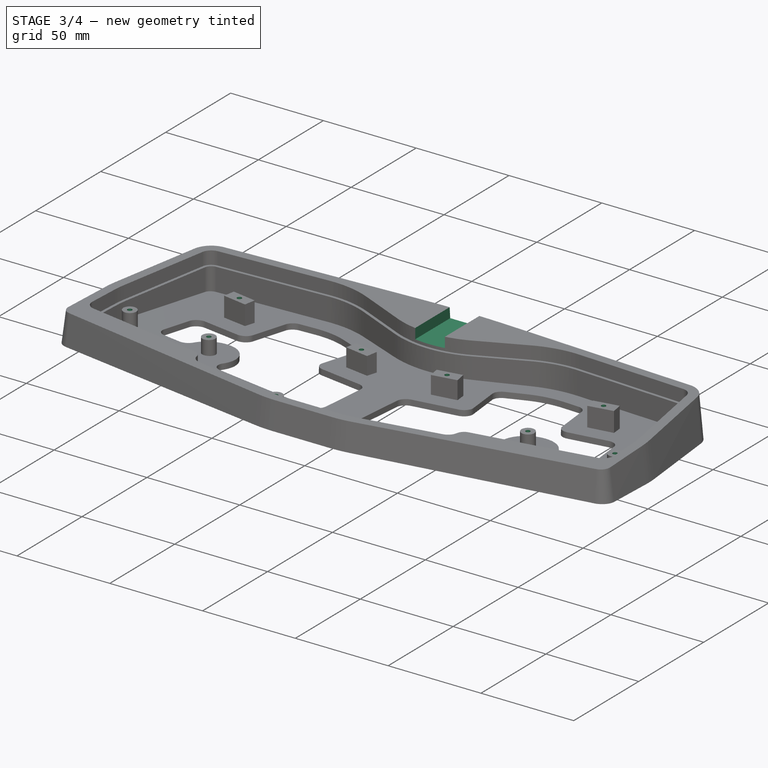
[diagram: stage 3 of 4 — iso view after this stage's code; geometry added in this stage tinted green]
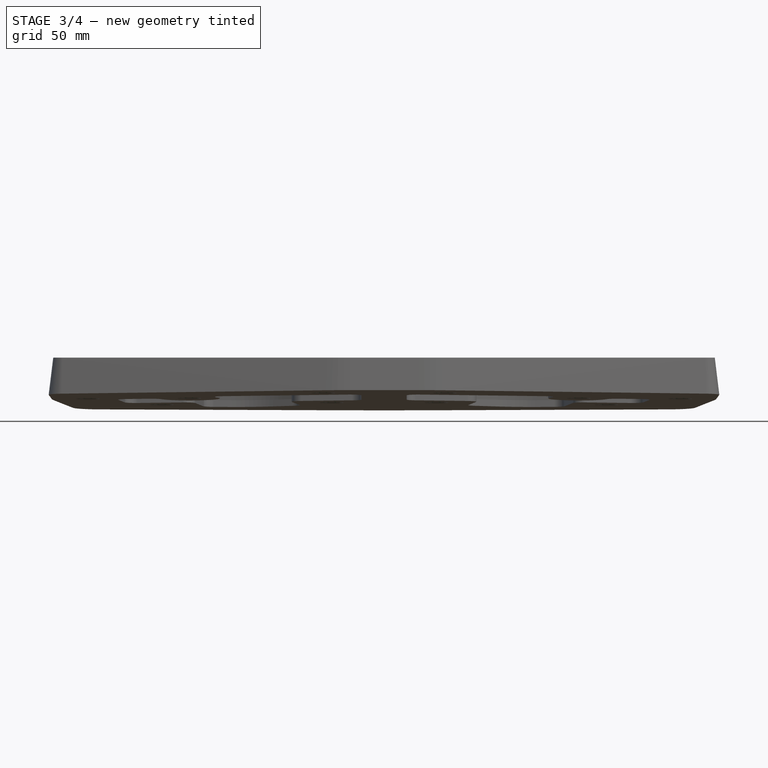
[diagram: stage 3 of 4 — front view after this stage's code; geometry added in this stage tinted green]
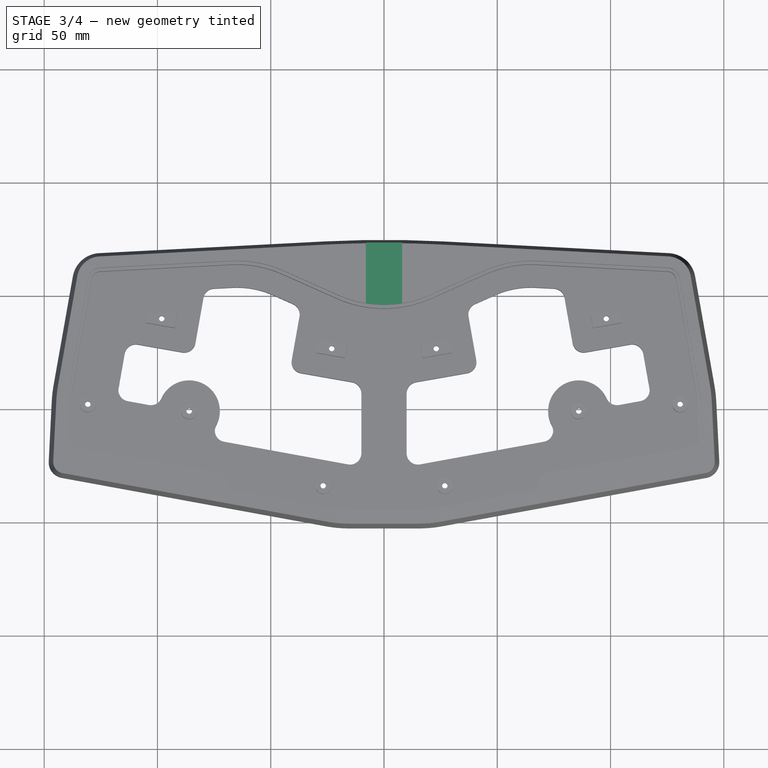
[diagram: stage 3 of 4 — top view after this stage's code; geometry added in this stage tinted green]
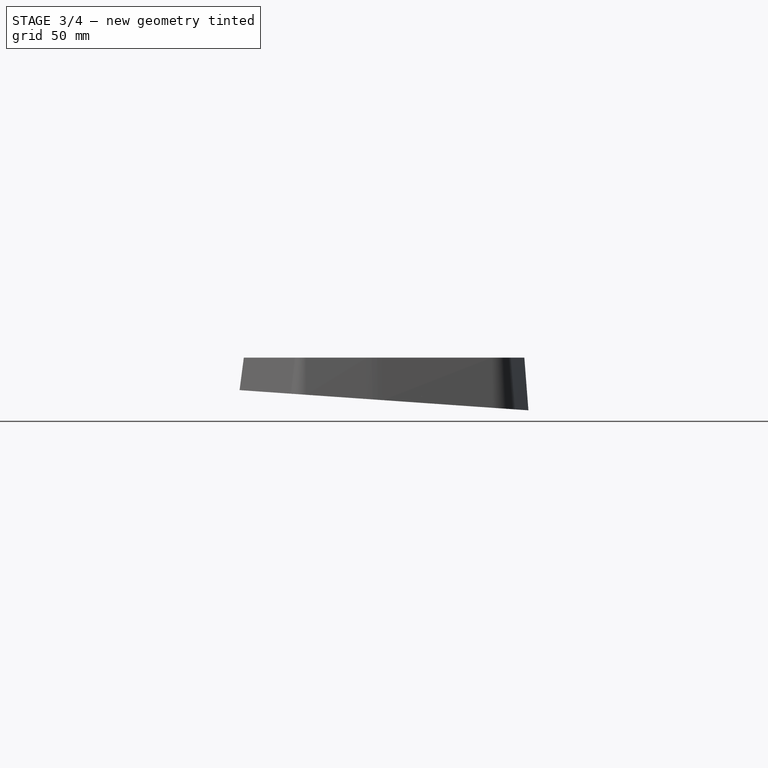
[diagram: stage 3 of 4 — right view after this stage's code; geometry added in this stage tinted green]
FEATURE [Sketcher::SketchObject] Sketch006
  ExternalGeometry = -> [Pocket002]
  FullyConstrained = true
  MapMode = 5
  Placement = pos=(0,0,11) rot=(0,0,1;0rad)
  Support = -> [Pocket002]
  sketch-geometry (10):
    g0: Circle CenterX=-98.11 CenterY=39.8767 CenterZ=0 NormalX=0 NormalY=0 NormalZ=1 AngleXU=0 Radius=1.5
    g1: Circle CenterX=-23.0677 CenterY=26.6447 CenterZ=0 NormalX=0 NormalY=0 NormalZ=1 AngleXU=0 Radius=1.5
    g2: Circle CenterX=23.0677 CenterY=26.6447 CenterZ=0 NormalX=0 NormalY=0 NormalZ=1 AngleXU=0 Radius=1.5
    g3: Circle CenterX=98.11 CenterY=39.8767 CenterZ=0 NormalX=0 NormalY=0 NormalZ=1 AngleXU=0 Radius=1.5
    g4: Circle CenterX=-130.715 CenterY=2.10212 CenterZ=0 NormalX=0 NormalY=0 NormalZ=1 AngleXU=0 Radius=1.5
    g5: Circle CenterX=-85.9654 CenterY=-0.952441 CenterZ=0 NormalX=0 NormalY=0 NormalZ=1 AngleXU=0 Radius=1.5
    g6: Circle CenterX=-26.8409 CenterY=-33.9213 CenterZ=0 NormalX=0 NormalY=0 NormalZ=1 AngleXU=0 Radius=1.5
    g7: Circle CenterX=26.8409 CenterY=-33.9213 CenterZ=0 NormalX=0 NormalY=0 NormalZ=1 AngleXU=0 Radius=1.5
    g8: Circle CenterX=85.9654 CenterY=-0.952441 CenterZ=0 NormalX=0 NormalY=0 NormalZ=1 AngleXU=0 Radius=1.5
    g9: Circle CenterX=130.715 CenterY=2.10212 CenterZ=0 NormalX=0 NormalY=0 NormalZ=1 AngleXU=0 Radius=1.5
  constraints (20):
    c: Symmetric(g-10,g-9,g3)
    c: Symmetric(g-8,g-7,g2)
    c: Symmetric(g-6,g-5,g1)
    c: Symmetric(g-4,g-3,g0)
    c: Equal(g4,g5)
    c: Equal(g5,g6)
    c: Equal(g6,g7)
    c: Equal(g7,g8)
    c: Equal(g8,g9)
    c: Equal(g9,g3)
    c: Equal(g3,g2)
    c: Equal(g2,g1)
    c: Equal(g1,g0)
    c: Coincident(g4,g-16)
    c: Coincident(g5,g-15)
    c: Coincident(g6,g-14)
    c: Coincident(g7,g-13)
    c: Coincident(g8,g-12)
    c: Coincident(g9,g-11)
    c: Diameter(g0) = 3
FEATURE [PartDesign::Hole] Hole
  BaseFeature = -> Pocket002
  CustomThreadClearance = 0
  Depth = 652.29
  DepthType = 1
  Diameter = 2.42
  DrillForDepth = false
  DrillPoint = 1
  DrillPointAngle = 118
  HoleCutCountersinkAngle = 90
  HoleCutCustomValues = false
  HoleCutDepth = 0
  HoleCutDiameter = 6.1
  HoleCutType = 0
  ModelThread = false
  Profile = -> Sketch006
  Tapered = false
  TaperedAngle = 90
  ThreadClass = 0
  ThreadDepth = 652.29
  ThreadDepthType = 0
  ThreadDirection = 0
  ThreadFit = 0
  ThreadSize = 7
  ThreadType = 1
  Threaded = false
  UseCustomThreadClearance = false
FEATURE [PartDesign::Chamfer] Chamfer
  Angle = 45
  Base = -> Hole [Edge46,Edge47,Edge48,Edge72,Edge49,Edge45,Edge22,Edge20,Edge19,Edge21]
  BaseFeature = -> Hole
  ChamferType = 0
  FlipDirection = false
  Size = 4
  Size2 = 1
  SupportTransform = false
  UseAllEdges = false
FEATURE [Sketcher::SketchObject] Sketch007
  ExternalGeometry = -> [Chamfer]
  FullyConstrained = true
  MapMode = 5
  Placement = pos=(0,0,18) rot=(0,0,1;0rad)
  Support = -> [Chamfer]
  sketch-geometry (4):
    g0: LineSegment StartX=-8 StartY=84.1877 StartZ=0 EndX=8 EndY=84.1877 EndZ=0
    g1: LineSegment StartX=8 StartY=84.1877 StartZ=0 EndX=8 EndY=34.1877 EndZ=0
    g2: LineSegment StartX=8 StartY=34.1877 StartZ=0 EndX=-8 EndY=34.1877 EndZ=0
    g3: LineSegment StartX=-8 StartY=34.1877 StartZ=0 EndX=-8 EndY=84.1877 EndZ=0
  constraints (11):
    c: Coincident(g0,g1)
    c: Coincident(g1,g2)
    c: Coincident(g2,g3)
    c: Coincident(g3,g0)
    c: Horizontal(g0)
    c: Vertical(g1)
    c: Vertical(g3)
    c: Symmetric(g1,g2,g-2)
    c: Distance(g0,g1) = 50
    c: Distance(g0) = 16
    c: DistanceY(g-3,g0) = 10
FEATURE [PartDesign::Pocket] Pocket003
  BaseFeature = -> Chamfer
  Direction = (0,0,-1)
  Length = 0
  Length2 = 5
  Offset = -1.5
  Profile = -> Sketch007
  ReferenceAxis = -> Sketch007 [N_Axis]
  Type = 3
  UpToFace = -> Chamfer [Face174]
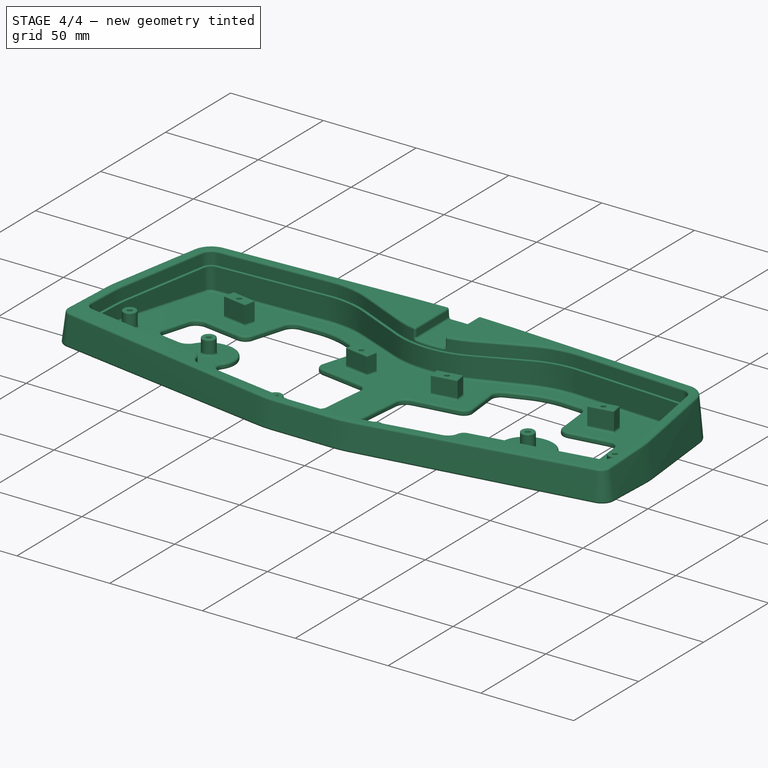
[diagram: stage 4 of 4 — iso view after this stage's code; geometry added in this stage tinted green]
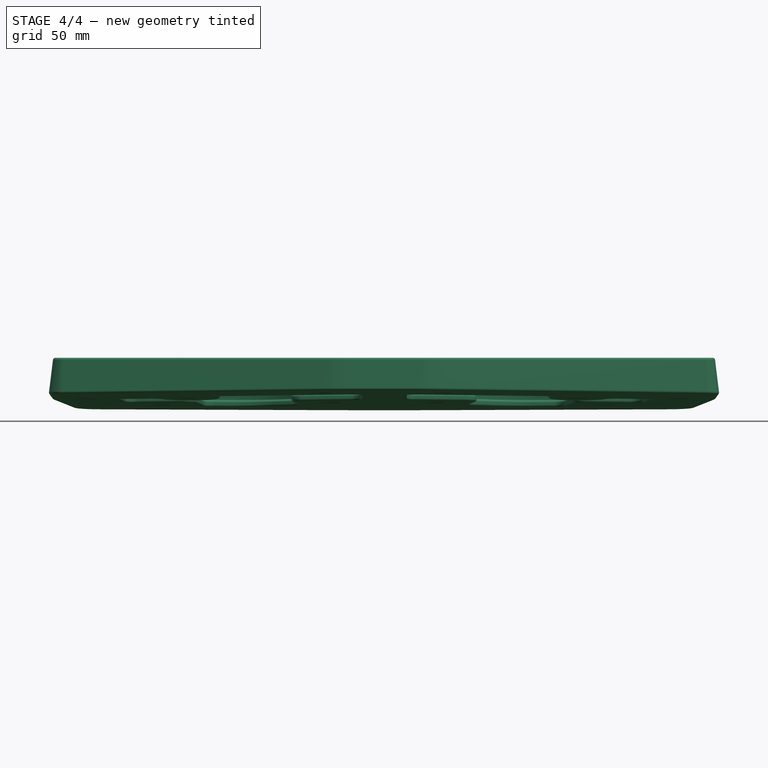
[diagram: stage 4 of 4 — front view after this stage's code; geometry added in this stage tinted green]
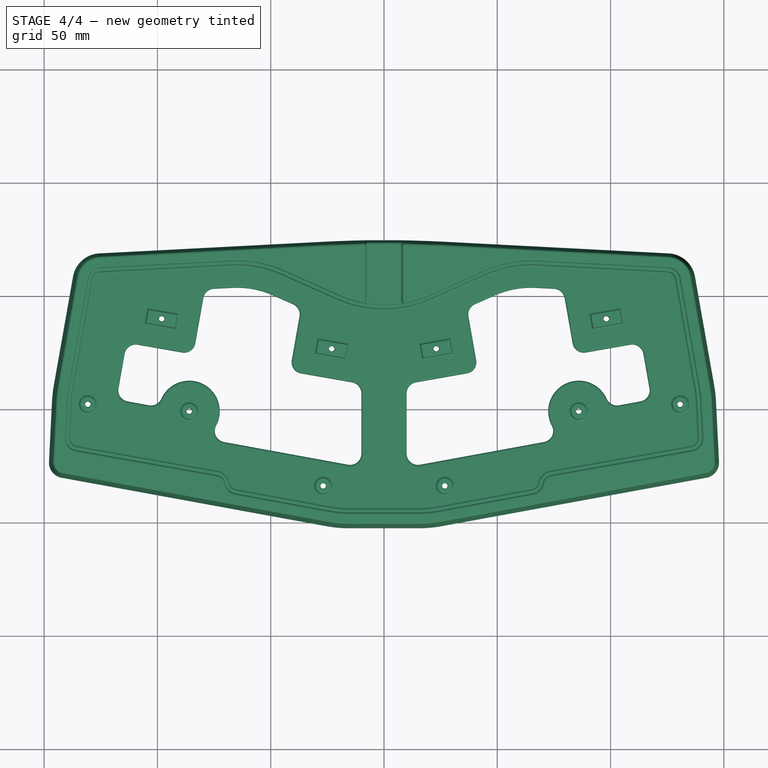
[diagram: stage 4 of 4 — top view after this stage's code; geometry added in this stage tinted green]
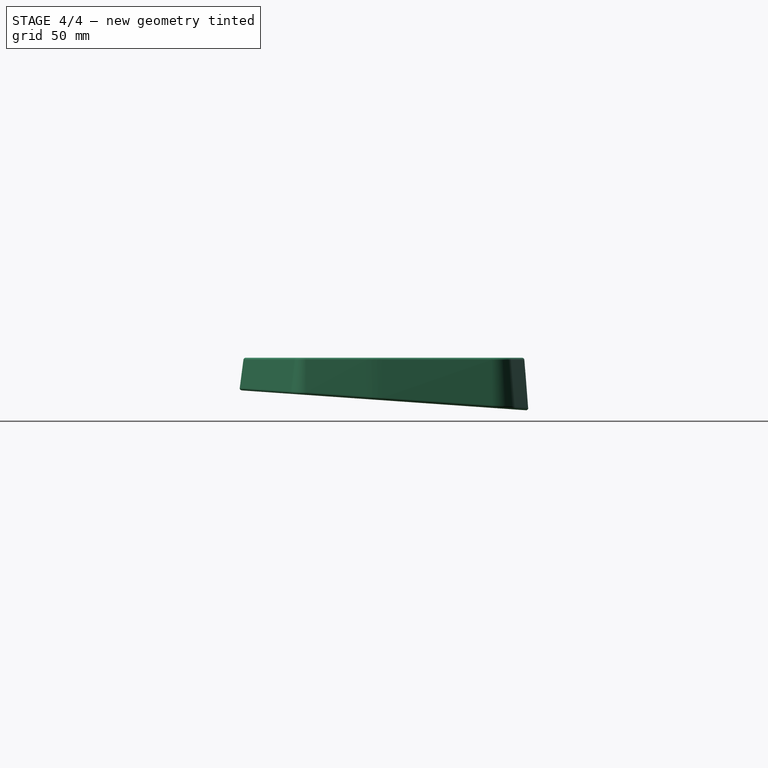
[diagram: stage 4 of 4 — right view after this stage's code; geometry added in this stage tinted green]
FEATURE [Sketcher::SketchObject] Sketch008
  FullyConstrained = false
  MapMode = 5
  Placement = pos=(0,0,18) rot=(0,0,1;0rad)
  Support = -> [Pocket003]
  sketch-geometry (225):
    g0: ArcOfCircle CenterX=-20 CenterY=66.5 CenterZ=0 NormalX=0 NormalY=0 NormalZ=1 AngleXU=0 Radius=4.5 StartAngle=4.71239 EndAngle=7.85398
    g1: ArcOfCircle CenterX=-20 CenterY=57.5 CenterZ=0 NormalX=0 NormalY=0 NormalZ=1 AngleXU=0 Radius=4.5 StartAngle=1.5708 EndAngle=4.71239
    g2: Circle CenterX=-20 CenterY=66.5 CenterZ=0 NormalX=0 NormalY=0 NormalZ=-1 AngleXU=0 Radius=1.5
    g3: ArcOfCircle CenterX=-20 CenterY=62 CenterZ=0 NormalX=0 NormalY=0 NormalZ=1 AngleXU=0 Radius=9 StartAngle=1.5708 EndAngle=4.71239
    g4: ArcOfCircle CenterX=20 CenterY=57.5 CenterZ=0 NormalX=0 NormalY=0 NormalZ=1 AngleXU=0 Radius=4.5 StartAngle=1.5708 EndAngle=4.71239
    g5: ArcOfCircle CenterX=20 CenterY=66.5 CenterZ=0 NormalX=0 NormalY=0 NormalZ=1 AngleXU=0 Radius=4.5 StartAngle=4.71239 EndAngle=7.85398
    g6: Circle CenterX=20 CenterY=57.5 CenterZ=0 NormalX=0 NormalY=0 NormalZ=-1 AngleXU=0 Radius=1.5
    g7: ArcOfCircle CenterX=20 CenterY=62 CenterZ=0 NormalX=0 NormalY=0 NormalZ=1 AngleXU=0 Radius=9 StartAngle=4.71239 EndAngle=7.85398
    g8: BSplineCurve PolesCount=4 KnotsCount=2 Degree=3 IsPeriodic=0
    g9: BSplineCurve PolesCount=4 KnotsCount=2 Degree=3 IsPeriodic=0
    g10: BSplineCurve PolesCount=4 KnotsCount=2 Degree=3 IsPeriodic=0
    g11: LineSegment StartX=-136.369 StartY=-27.4044 StartZ=0 EndX=-137.974 EndY=-27.1095 EndZ=0
    g12: BSplineCurve PolesCount=4 KnotsCount=2 Degree=3 IsPeriodic=0
    g13: BSplineCurve PolesCount=4 KnotsCount=2 Degree=3 IsPeriodic=0
    g14: LineSegment StartX=-138.424 StartY=-26.4799 StartZ=0 EndX=-137.424 EndY=-21.0377 EndZ=0
    g15: BSplineCurve PolesCount=4 KnotsCount=2 Degree=3 IsPeriodic=0
    g16: BSplineCurve PolesCount=4 KnotsCount=2 Degree=3 IsPeriodic=0
    g17: BSplineCurve PolesCount=4 KnotsCount=2 Degree=3 IsPeriodic=0
    g18: BSplineCurve PolesCount=4 KnotsCount=2 Degree=3 IsPeriodic=0
    g19: BSplineCurve PolesCount=4 KnotsCount=2 Degree=3 IsPeriodic=0
    g20: LineSegment StartX=-136.808 StartY=-20.6131 StartZ=0 EndX=-135.35 EndY=-20.881 EndZ=0
    g21: BSplineCurve PolesCount=4 KnotsCount=2 Degree=3 IsPeriodic=0
    g22: BSplineCurve PolesCount=4 KnotsCount=2 Degree=3 IsPeriodic=0
    g23: BSplineCurve PolesCount=4 KnotsCount=2 Degree=3 IsPeriodic=0
    g24: BSplineCurve PolesCount=4 KnotsCount=2 Degree=3 IsPeriodic=0
    g25: LineSegment StartX=-135.569 StartY=-21.7508 StartZ=0 EndX=-136.476 EndY=-21.5841 EndZ=0
    g26: LineSegment StartX=-136.476 StartY=-21.5841 StartZ=0 EndX=-136.801 EndY=-23.3537 EndZ=0
    g27: LineSegment StartX=-136.801 StartY=-23.3537 StartZ=0 EndX=-135.983 EndY=-23.504 EndZ=0
    g28: BSplineCurve PolesCount=4 KnotsCount=2 Degree=3 IsPeriodic=0
    g29: BSplineCurve PolesCount=4 KnotsCount=2 Degree=3 IsPeriodic=0
    g30: BSplineCurve PolesCount=4 KnotsCount=2 Degree=3 IsPeriodic=0
    g31: BSplineCurve PolesCount=4 KnotsCount=2 Degree=3 IsPeriodic=0
    g32: LineSegment StartX=-135.912 StartY=-24.3905 StartZ=0 EndX=-136.957 EndY=-24.1985 EndZ=0
    g33: LineSegment StartX=-136.957 StartY=-24.1985 StartZ=0 EndX=-137.345 EndY=-26.3105 EndZ=0
    g34: LineSegment StartX=-137.345 StartY=-26.3105 StartZ=0 EndX=-136.38 EndY=-26.4877 EndZ=0
    g35: BSplineCurve PolesCount=4 KnotsCount=2 Degree=3 IsPeriodic=0
    g36: BSplineCurve PolesCount=4 KnotsCount=2 Degree=3 IsPeriodic=0
    g37: BSplineCurve PolesCount=4 KnotsCount=2 Degree=3 IsPeriodic=0
    g38: BSplineCurve PolesCount=4 KnotsCount=2 Degree=3 IsPeriodic=0
    g39: BSplineCurve PolesCount=4 KnotsCount=2 Degree=3 IsPeriodic=0
    g40: BSplineCurve PolesCount=4 KnotsCount=2 Degree=3 IsPeriodic=0
    g41: BSplineCurve PolesCount=4 KnotsCount=2 Degree=3 IsPeriodic=0
    g42: BSplineCurve PolesCount=4 KnotsCount=2 Degree=3 IsPeriodic=0
    g43: BSplineCurve PolesCount=4 KnotsCount=2 Degree=3 IsPeriodic=0
    g44: BSplineCurve PolesCount=4 KnotsCount=2 Degree=3 IsPeriodic=0
    g45: BSplineCurve PolesCount=4 KnotsCount=2 Degree=3 IsPeriodic=0
    g46: BSplineCurve PolesCount=4 KnotsCount=2 Degree=3 IsPeriodic=0
    g47: BSplineCurve PolesCount=4 KnotsCount=2 Degree=3 IsPeriodic=0
    g48: BSplineCurve PolesCount=4 KnotsCount=2 Degree=3 IsPeriodic=0
    g49: BSplineCurve PolesCount=4 KnotsCount=2 Degree=3 IsPeriodic=0
    g50: BSplineCurve PolesCount=4 KnotsCount=2 Degree=3 IsPeriodic=0
    g51: BSplineCurve PolesCount=4 KnotsCount=2 Degree=3 IsPeriodic=0
    g52: BSplineCurve PolesCount=4 KnotsCount=2 Degree=3 IsPeriodic=0
    g53: BSplineCurve PolesCount=4 KnotsCount=2 Degree=3 IsPeriodic=0
    g54: BSplineCurve PolesCount=4 KnotsCount=2 Degree=3 IsPeriodic=0
    g55: BSplineCurve PolesCount=4 KnotsCount=2 Degree=3 IsPeriodic=0
    g56: BSplineCurve PolesCount=4 KnotsCount=2 Degree=3 IsPeriodic=0
    g57: BSplineCurve PolesCount=4 KnotsCount=2 Degree=3 IsPeriodic=0
    g58: LineSegment StartX=-127.257 StartY=-26.293 StartZ=0 EndX=-127.67 EndY=-28.5428 EndZ=0
    g59: BSplineCurve PolesCount=4 KnotsCount=2 Degree=3 IsPeriodic=0
    g60: BSplineCurve PolesCount=4 KnotsCount=2 Degree=3 IsPeriodic=0
    g61: BSplineCurve PolesCount=4 KnotsCount=2 Degree=3 IsPeriodic=0
    g62: BSplineCurve PolesCount=4 KnotsCount=2 Degree=3 IsPeriodic=0
    g63: LineSegment StartX=-128.681 StartY=-28.3388 StartZ=0 EndX=-127.96 EndY=-24.4128 EndZ=0
    g64: BSplineCurve PolesCount=4 KnotsCount=2 Degree=3 IsPeriodic=0
    g65: BSplineCurve PolesCount=4 KnotsCount=2 Degree=3 IsPeriodic=0
    g66: BSplineCurve PolesCount=4 KnotsCount=2 Degree=3 IsPeriodic=0
    g67: BSplineCurve PolesCount=4 KnotsCount=2 Degree=3 IsPeriodic=0
    g68: BSplineCurve PolesCount=4 KnotsCount=2 Degree=3 IsPeriodic=0
    g69: LineSegment StartX=-126.946 StartY=-24.599 StartZ=0 EndX=-126.956 EndY=-24.6524 EndZ=0
    g70: BSplineCurve PolesCount=4 KnotsCount=2 Degree=3 IsPeriodic=0
    g71: BSplineCurve PolesCount=4 KnotsCount=2 Degree=3 IsPeriodic=0
    g72: BSplineCurve PolesCount=4 KnotsCount=2 Degree=3 IsPeriodic=0
    g73: BSplineCurve PolesCount=4 KnotsCount=2 Degree=3 IsPeriodic=0
    g74: BSplineCurve PolesCount=4 KnotsCount=2 Degree=3 IsPeriodic=0
    g75: BSplineCurve PolesCount=4 KnotsCount=2 Degree=3 IsPeriodic=0
    g76: BSplineCurve PolesCount=4 KnotsCount=2 Degree=3 IsPeriodic=0
    g77: LineSegment StartX=-121.304 StartY=-27.0374 StartZ=0 EndX=-121.779 EndY=-29.6251 EndZ=0
    g78: BSplineCurve PolesCount=4 KnotsCount=2 Degree=3 IsPeriodic=0
    g79: BSplineCurve PolesCount=4 KnotsCount=2 Degree=3 IsPeriodic=0
    g80: BSplineCurve PolesCount=4 KnotsCount=2 Degree=3 IsPeriodic=0
    g81: BSplineCurve PolesCount=4 KnotsCount=2 Degree=3 IsPeriodic=0
    g82: LineSegment StartX=-122.793 StartY=-29.4389 StartZ=0 EndX=-122.321 EndY=-26.869 EndZ=0
    g83: BSplineCurve PolesCount=4 KnotsCount=2 Degree=3 IsPeriodic=0
    g84: BSplineCurve PolesCount=4 KnotsCount=2 Degree=3 IsPeriodic=0
    g85: BSplineCurve PolesCount=4 KnotsCount=2 Degree=3 IsPeriodic=0
    g86: BSplineCurve PolesCount=4 KnotsCount=2 Degree=3 IsPeriodic=0
    g87: LineSegment StartX=-124.351 StartY=-26.5143 StartZ=0 EndX=-124.82 EndY=-29.0664 EndZ=0
    g88: BSplineCurve PolesCount=4 KnotsCount=2 Degree=3 IsPeriodic=0
    g89: BSplineCurve PolesCount=4 KnotsCount=2 Degree=3 IsPeriodic=0
    g90: BSplineCurve PolesCount=4 KnotsCount=2 Degree=3 IsPeriodic=0
    g91: LineSegment StartX=-125.834 StartY=-28.8802 StartZ=0 EndX=-125.109 EndY=-24.9363 EndZ=0
    g92: BSplineCurve PolesCount=4 KnotsCount=2 Degree=3 IsPeriodic=0
    g93: BSplineCurve PolesCount=4 KnotsCount=2 Degree=3 IsPeriodic=0
    g94: BSplineCurve PolesCount=4 KnotsCount=2 Degree=3 IsPeriodic=0
    g95: BSplineCurve PolesCount=4 KnotsCount=2 Degree=3 IsPeriodic=0
    g96: BSplineCurve PolesCount=4 KnotsCount=2 Degree=3 IsPeriodic=0
    g97: LineSegment StartX=-116.579 StartY=-26.8896 StartZ=0 EndX=-116.85 EndY=-26.8398 EndZ=0
    g98: LineSegment StartX=-116.85 StartY=-26.8398 StartZ=0 EndX=-117.509 EndY=-30.4279 EndZ=0
    g99: BSplineCurve PolesCount=4 KnotsCount=2 Degree=3 IsPeriodic=0
    g100: BSplineCurve PolesCount=4 KnotsCount=2 Degree=3 IsPeriodic=0
    g101: BSplineCurve PolesCount=4 KnotsCount=2 Degree=3 IsPeriodic=0
    g102: BSplineCurve PolesCount=4 KnotsCount=2 Degree=3 IsPeriodic=0
    g103: LineSegment StartX=-118.533 StartY=-30.2214 StartZ=0 EndX=-117.877 EndY=-26.6511 EndZ=0
    g104: LineSegment StartX=-117.877 StartY=-26.6511 StartZ=0 EndX=-118.126 EndY=-26.6053 EndZ=0
    g105: BSplineCurve PolesCount=4 KnotsCount=2 Degree=3 IsPeriodic=0
    g106: BSplineCurve PolesCount=4 KnotsCount=2 Degree=3 IsPeriodic=0
    g107: BSplineCurve PolesCount=4 KnotsCount=2 Degree=3 IsPeriodic=0
    g108: LineSegment StartX=-117.964 StartY=-25.7205 StartZ=0 EndX=-117.715 EndY=-25.7663 EndZ=0
    g109: LineSegment StartX=-117.715 StartY=-25.7663 StartZ=0 EndX=-117.541 EndY=-24.8192 EndZ=0
    g110: BSplineCurve PolesCount=4 KnotsCount=2 Degree=3 IsPeriodic=0
    g111: BSplineCurve PolesCount=4 KnotsCount=2 Degree=3 IsPeriodic=0
    g112: BSplineCurve PolesCount=4 KnotsCount=2 Degree=3 IsPeriodic=0
    g113: LineSegment StartX=-116.517 StartY=-25.0257 StartZ=0 EndX=-116.688 EndY=-25.955 EndZ=0
    g114: LineSegment StartX=-116.688 StartY=-25.955 StartZ=0 EndX=-116.452 EndY=-25.9983 EndZ=0
    g115: BSplineCurve PolesCount=4 KnotsCount=2 Degree=3 IsPeriodic=0
    g116: BSplineCurve PolesCount=4 KnotsCount=2 Degree=3 IsPeriodic=0
    g117: BSplineCurve PolesCount=4 KnotsCount=2 Degree=3 IsPeriodic=0
    g118: BSplineCurve PolesCount=4 KnotsCount=2 Degree=3 IsPeriodic=0
    g119: BSplineCurve PolesCount=4 KnotsCount=2 Degree=3 IsPeriodic=0
    g120: BSplineCurve PolesCount=4 KnotsCount=2 Degree=3 IsPeriodic=0
    g121: BSplineCurve PolesCount=4 KnotsCount=2 Degree=3 IsPeriodic=0
    g122: BSplineCurve PolesCount=4 KnotsCount=2 Degree=3 IsPeriodic=0
    g123: BSplineCurve PolesCount=4 KnotsCount=2 Degree=3 IsPeriodic=0
    g124: BSplineCurve PolesCount=4 KnotsCount=2 Degree=3 IsPeriodic=0
    g125: BSplineCurve PolesCount=4 KnotsCount=2 Degree=3 IsPeriodic=0
    g126: BSplineCurve PolesCount=4 KnotsCount=2 Degree=3 IsPeriodic=0
    g127: BSplineCurve PolesCount=4 KnotsCount=2 Degree=3 IsPeriodic=0
    g128: BSplineCurve PolesCount=4 KnotsCount=2 Degree=3 IsPeriodic=0
    g129: BSplineCurve PolesCount=4 KnotsCount=2 Degree=3 IsPeriodic=0
    g130: BSplineCurve PolesCount=4 KnotsCount=2 Degree=3 IsPeriodic=0
    g131: BSplineCurve PolesCount=4 KnotsCount=2 Degree=3 IsPeriodic=0
    g132: BSplineCurve PolesCount=4 KnotsCount=2 Degree=3 IsPeriodic=0
    g133: BSplineCurve PolesCount=4 KnotsCount=2 Degree=3 IsPeriodic=0
    g134: BSplineCurve PolesCount=4 KnotsCount=2 Degree=3 IsPeriodic=0
    g135: BSplineCurve PolesCount=4 KnotsCount=2 Degree=3 IsPeriodic=0
    g136: BSplineCurve PolesCount=4 KnotsCount=2 Degree=3 IsPeriodic=0
    g137: BSplineCurve PolesCount=4 KnotsCount=2 Degree=3 IsPeriodic=0
    g138: BSplineCurve PolesCount=4 KnotsCount=2 Degree=3 IsPeriodic=0
    g139: LineSegment StartX=-109.512 StartY=-31.8788 StartZ=0 EndX=-108.394 EndY=-25.7963 EndZ=0
    g140: BSplineCurve PolesCount=4 KnotsCount=2 Degree=3 IsPeriodic=0
    g141: BSplineCurve PolesCount=4 KnotsCount=2 Degree=3 IsPeriodic=0
    g142: BSplineCurve PolesCount=4 KnotsCount=2 Degree=3 IsPeriodic=0
    g143: BSplineCurve PolesCount=4 KnotsCount=2 Degree=3 IsPeriodic=0
    g144: BSplineCurve PolesCount=4 KnotsCount=2 Degree=3 IsPeriodic=0
    g145: BSplineCurve PolesCount=4 KnotsCount=2 Degree=3 IsPeriodic=0
    g146: LineSegment StartX=-107.379 StartY=-25.9737 StartZ=0 EndX=-107.752 EndY=-28.0012 EndZ=0
    g147: BSplineCurve PolesCount=4 KnotsCount=2 Degree=3 IsPeriodic=0
    g148: BSplineCurve PolesCount=4 KnotsCount=2 Degree=3 IsPeriodic=0
    g149: BSplineCurve PolesCount=4 KnotsCount=2 Degree=3 IsPeriodic=0
    g150: BSplineCurve PolesCount=4 KnotsCount=2 Degree=3 IsPeriodic=0
    g151: BSplineCurve PolesCount=4 KnotsCount=2 Degree=3 IsPeriodic=0
    g152: BSplineCurve PolesCount=4 KnotsCount=2 Degree=3 IsPeriodic=0
    g153: BSplineCurve PolesCount=4 KnotsCount=2 Degree=3 IsPeriodic=0
    g154: BSplineCurve PolesCount=4 KnotsCount=2 Degree=3 IsPeriodic=0
    g155: BSplineCurve PolesCount=4 KnotsCount=2 Degree=3 IsPeriodic=0
    g156: LineSegment StartX=-108.217 StartY=-29.961 StartZ=0 EndX=-108.203 EndY=-29.982 EndZ=0
    g157: BSplineCurve PolesCount=4 KnotsCount=2 Degree=3 IsPeriodic=0
    g158: BSplineCurve PolesCount=4 KnotsCount=2 Degree=3 IsPeriodic=0
    g159: BSplineCurve PolesCount=4 KnotsCount=2 Degree=3 IsPeriodic=0
    g160: BSplineCurve PolesCount=4 KnotsCount=2 Degree=3 IsPeriodic=0
    g161: BSplineCurve PolesCount=4 KnotsCount=2 Degree=3 IsPeriodic=0
    g162: BSplineCurve PolesCount=4 KnotsCount=2 Degree=3 IsPeriodic=0
    g163: BSplineCurve PolesCount=4 KnotsCount=2 Degree=3 IsPeriodic=0
    g164: LineSegment StartX=-104.219 StartY=-31.3895 StartZ=0 EndX=-103.751 EndY=-28.8418 EndZ=0
    g165: BSplineCurve PolesCount=4 KnotsCount=2 Degree=3 IsPeriodic=0
    g166: BSplineCurve PolesCount=4 KnotsCount=2 Degree=3 IsPeriodic=0
    g167: LineSegment StartX=-102.737 StartY=-29.0281 StartZ=0 EndX=-103.202 EndY=-31.558 EndZ=0
    g168: BSplineCurve PolesCount=4 KnotsCount=2 Degree=3 IsPeriodic=0
    g169: BSplineCurve PolesCount=4 KnotsCount=2 Degree=3 IsPeriodic=0
    g170: BSplineCurve PolesCount=4 KnotsCount=2 Degree=3 IsPeriodic=0
    g171: LineSegment StartX=-101.174 StartY=-31.9305 StartZ=0 EndX=-100.71 EndY=-29.4006 EndZ=0
    g172: BSplineCurve PolesCount=4 KnotsCount=2 Degree=3 IsPeriodic=0
    g173: LineSegment StartX=-99.696 StartY=-29.5868 StartZ=0 EndX=-100.164 EndY=-32.1345 EndZ=0
    g174: BSplineCurve PolesCount=4 KnotsCount=2 Degree=3 IsPeriodic=0
    g175: BSplineCurve PolesCount=4 KnotsCount=2 Degree=3 IsPeriodic=0
    g176: BSplineCurve PolesCount=4 KnotsCount=2 Degree=3 IsPeriodic=0
    g177: BSplineCurve PolesCount=4 KnotsCount=2 Degree=3 IsPeriodic=0
    g178: BSplineCurve PolesCount=4 KnotsCount=2 Degree=3 IsPeriodic=0
    g179: BSplineCurve PolesCount=4 KnotsCount=2 Degree=3 IsPeriodic=0
    g180: BSplineCurve PolesCount=4 KnotsCount=2 Degree=3 IsPeriodic=0
    g181: BSplineCurve PolesCount=4 KnotsCount=2 Degree=3 IsPeriodic=0
    g182: BSplineCurve PolesCount=4 KnotsCount=2 Degree=3 IsPeriodic=0
    g183: BSplineCurve PolesCount=4 KnotsCount=2 Degree=3 IsPeriodic=0
    g184: BSplineCurve PolesCount=4 KnotsCount=2 Degree=3 IsPeriodic=0
    g185: BSplineCurve PolesCount=4 KnotsCount=2 Degree=3 IsPeriodic=0
    g186: BSplineCurve PolesCount=4 KnotsCount=2 Degree=3 IsPeriodic=0
    g187: BSplineCurve PolesCount=4 KnotsCount=2 Degree=3 IsPeriodic=0
    g188: BSplineCurve PolesCount=4 KnotsCount=2 Degree=3 IsPeriodic=0
    g189: LineSegment StartX=-99.6101 StartY=-33.6979 StartZ=0 EndX=-98.8758 EndY=-29.7007 EndZ=0
    g190: BSplineCurve PolesCount=4 KnotsCount=2 Degree=3 IsPeriodic=0
    g191: LineSegment StartX=-97.8579 StartY=-29.8647 StartZ=0 EndX=-98.5964 EndY=-33.8841 EndZ=0
    g192: BSplineCurve PolesCount=4 KnotsCount=2 Degree=3 IsPeriodic=0
    g193: BSplineCurve PolesCount=4 KnotsCount=2 Degree=3 IsPeriodic=0
    g194: BSplineCurve PolesCount=4 KnotsCount=2 Degree=3 IsPeriodic=0
    g195: BSplineCurve PolesCount=4 KnotsCount=2 Degree=3 IsPeriodic=0
    g196: BSplineCurve PolesCount=4 KnotsCount=2 Degree=3 IsPeriodic=0
    g197: LineSegment StartX=-97.7617 StartY=-34.0191 StartZ=0 EndX=-96.6507 EndY=-27.9722 EndZ=0
    g198: BSplineCurve PolesCount=4 KnotsCount=2 Degree=3 IsPeriodic=0
    g199: BSplineCurve PolesCount=4 KnotsCount=2 Degree=3 IsPeriodic=0
    g200: LineSegment StartX=-95.6354 StartY=-28.1495 StartZ=0 EndX=-96.7479 EndY=-34.2053 EndZ=0
    g201: BSplineCurve PolesCount=4 KnotsCount=2 Degree=3 IsPeriodic=0
    g202: BSplineCurve PolesCount=4 KnotsCount=2 Degree=3 IsPeriodic=0
    g203: BSplineCurve PolesCount=4 KnotsCount=2 Degree=3 IsPeriodic=0
    g204: BSplineCurve PolesCount=4 KnotsCount=2 Degree=3 IsPeriodic=0
    g205: BSplineCurve PolesCount=4 KnotsCount=2 Degree=3 IsPeriodic=0
    g206: BSplineCurve PolesCount=4 KnotsCount=2 Degree=3 IsPeriodic=0
    g207: BSplineCurve PolesCount=4 KnotsCount=2 Degree=3 IsPeriodic=0
    g208: BSplineCurve PolesCount=4 KnotsCount=2 Degree=3 IsPeriodic=0
    g209: BSplineCurve PolesCount=4 KnotsCount=2 Degree=3 IsPeriodic=0
    g210: BSplineCurve PolesCount=4 KnotsCount=2 Degree=3 IsPeriodic=0
    g211: LineSegment StartX=-92.028 StartY=-30.8806 StartZ=0 EndX=-91.6369 EndY=-28.852 EndZ=0
    g212: BSplineCurve PolesCount=4 KnotsCount=2 Degree=3 IsPeriodic=0
    g213: BSplineCurve PolesCount=4 KnotsCount=2 Degree=3 IsPeriodic=0
    g214: BSplineCurve PolesCount=4 KnotsCount=2 Degree=3 IsPeriodic=0
    g215: BSplineCurve PolesCount=4 KnotsCount=2 Degree=3 IsPeriodic=0
    g216: LineSegment StartX=-90.6228 StartY=-29.0612 StartZ=0 EndX=-91.7402 EndY=-35.1437 EndZ=0
    g217: BSplineCurve PolesCount=4 KnotsCount=2 Degree=3 IsPeriodic=0
    g218: BSplineCurve PolesCount=4 KnotsCount=2 Degree=3 IsPeriodic=0
    g219: BSplineCurve PolesCount=4 KnotsCount=2 Degree=3 IsPeriodic=0
    g220: BSplineCurve PolesCount=4 KnotsCount=2 Degree=3 IsPeriodic=0
    g221: BSplineCurve PolesCount=4 KnotsCount=2 Degree=3 IsPeriodic=0
    g222: BSplineCurve PolesCount=4 KnotsCount=2 Degree=3 IsPeriodic=0
    g223: BSplineCurve PolesCount=4 KnotsCount=2 Degree=3 IsPeriodic=0
    g224: BSplineCurve PolesCount=4 KnotsCount=2 Degree=3 IsPeriodic=0
  constraints (223):
    c: Coincident(g10,g14)
    c: Coincident(g10,g11)
    c: Coincident(g12,g14)
    c: Coincident(g33,g34)
    c: Coincident(g12,g13)
    c: Coincident(g32,g33)
    c: Coincident(g13,g20)
    c: Coincident(g26,g27)
    c: Coincident(g25,g26)
    c: Coincident(g29,g34)
    c: Coincident(g9,g11)
    c: Coincident(g23,g27)
    c: Coincident(g28,g32)
    c: Coincident(g22,g25)
    c: Coincident(g29,g30)
    c: Coincident(g15,g20)
    c: Coincident(g8,g9)
    c: Coincident(g23,g24)
    c: Coincident(g21,g22)
    c: Coincident(g28,g31)
    c: Coincident(g30,g31)
    c: Coincident(g21,g24)
    c: Coincident(g17,g18)
    c: Coincident(g8,g19)
    c: Coincident(g15,g16)
    c: Coincident(g18,g19)
    c: Coincident(g16,g17)
    c: Coincident(g38,g39)
    c: Coincident(g37,g38)
    c: Coincident(g39,g40)
    c: Coincident(g46,g47)
    c: Coincident(g47,g48)
    c: Coincident(g45,g46)
    c: Coincident(g36,g37)
    c: Coincident(g48,g49)
    c: Coincident(g44,g45)
    c: Coincident(g40,g41)
    c: Coincident(g35,g36)
    c: Coincident(g49,g50)
    c: Coincident(g50,g51)
    c: Coincident(g44,g51)
    c: Coincident(g35,g43)
    c: Coincident(g41,g42)
    c: Coincident(g42,g43)
    c: Coincident(g57,g63)
    c: Coincident(g56,g57)
    c: Coincident(g55,g56)
    c: Coincident(g59,g63)
    c: Coincident(g54,g55)
    c: Coincident(g59,g60)
    c: Coincident(g54,g58)
    c: Coincident(g60,g61)
    c: Coincident(g53,g58)
    c: Coincident(g61,g62)
    c: Coincident(g64,g69)
    c: Coincident(g62,g69)
    c: Coincident(g52,g53)
    c: Coincident(g52,g68)
    c: Coincident(g64,g65)
    c: Coincident(g86,g91)
    c: Coincident(g85,g86)
    c: Coincident(g67,g68)
    c: Coincident(g65,g66)
    c: Coincident(g84,g85)
    c: Coincident(g66,g67)
    c: Coincident(g88,g91)
    c: Coincident(g83,g84)
    c: Coincident(g88,g89)
    c: Coincident(g83,g87)
    c: Coincident(g89,g90)
    c: Coincident(g81,g87)
    c: Coincident(g70,g90)
    c: Coincident(g80,g81)
    c: Coincident(g79,g80)
    c: Coincident(g76,g82)
    c: Coincident(g70,g71)
    c: Coincident(g75,g76)
    c: Coincident(g78,g79)
    c: Coincident(g74,g75)
    c: Coincident(g78,g82)
    c: Coincident(g73,g74)
    c: Coincident(g73,g77)
    c: Coincident(g71,g72)
    c: Coincident(g72,g77)
    c: Coincident(g100,g101)
    c: Coincident(g96,g103)
    c: Coincident(g95,g96)
    c: Coincident(g99,g100)
    c: Coincident(g101,g102)
    c: Coincident(g94,g95)
    c: Coincident(g99,g104)
    c: Coincident(g102,g108)
    c: Coincident(g103,g104)
    c: Coincident(g93,g94)
    c: Coincident(g108,g109)
    c: Coincident(g105,g109)
    c: Coincident(g93,g98)
    c: Coincident(g105,g106)
    c: Coincident(g106,g107)
    c: Coincident(g97,g98)
    c: Coincident(g113,g114)
    c: Coincident(g92,g97)
    c: Coincident(g107,g113)
    c: Coincident(g118,g119)
    c: Coincident(g110,g114)
    c: Coincident(g92,g112)
    c: Coincident(g117,g118)
    c: Coincident(g110,g111)
    c: Coincident(g111,g112)
    c: Coincident(g119,g120)
    c: Coincident(g126,g127)
    c: Coincident(g127,g128)
    c: Coincident(g125,g126)
    c: Coincident(g116,g117)
    c: Coincident(g128,g129)
    c: Coincident(g124,g125)
    c: Coincident(g120,g121)
    c: Coincident(g115,g116)
    c: Coincident(g129,g130)
    c: Coincident(g130,g131)
    c: Coincident(g124,g131)
    c: Coincident(g115,g123)
    c: Coincident(g121,g122)
    c: Coincident(g122,g123)
    c: Coincident(g134,g139)
    c: Coincident(g133,g134)
    c: Coincident(g132,g133)
    c: Coincident(g132,g145)
    c: Coincident(g135,g139)
    c: Coincident(g155,g156)
    c: Coincident(g147,g156)
    c: Coincident(g135,g136)
    c: Coincident(g147,g148)
    c: Coincident(g136,g137)
    c: Coincident(g140,g146)
    c: Coincident(g154,g155)
    c: Coincident(g144,g145)
    c: Coincident(g137,g138)
    c: Coincident(g138,g146)
    c: Coincident(g148,g149)
    c: Coincident(g153,g154)
    c: Coincident(g140,g141)
    c: Coincident(g152,g153)
    c: Coincident(g149,g150)
    c: Coincident(g151,g152)
    c: Coincident(g150,g151)
    c: Coincident(g143,g144)
    c: Coincident(g141,g142)
    c: Coincident(g142,g143)
    c: Coincident(g158,g159)
    c: Coincident(g159,g164)
    c: Coincident(g160,g164)
    c: Coincident(g160,g161)
    c: Coincident(g165,g167)
    c: Coincident(g161,g162)
    c: Coincident(g162,g163)
    c: Coincident(g163,g167)
    c: Coincident(g157,g158)
    c: Coincident(g165,g166)
    c: Coincident(g166,g171)
    c: Coincident(g168,g171)
    c: Coincident(g157,g172)
    c: Coincident(g168,g169)
    c: Coincident(g172,g173)
    c: Coincident(g169,g170)
    c: Coincident(g170,g173)
    c: Coincident(g184,g189)
    c: Coincident(g183,g184)
    c: Coincident(g182,g183)
    c: Coincident(g185,g189)
    c: Coincident(g182,g190)
    c: Coincident(g175,g176)
    c: Coincident(g185,g186)
    c: Coincident(g174,g175)
    c: Coincident(g190,g191)
    c: Coincident(g176,g177)
    c: Coincident(g186,g187)
    c: Coincident(g174,g181)
    c: Coincident(g177,g178)
    c: Coincident(g187,g188)
    c: Coincident(g188,g191)
    c: Coincident(g193,g197)
    c: Coincident(g180,g181)
    c: Coincident(g192,g193)
    c: Coincident(g178,g179)
    c: Coincident(g179,g180)
    c: Coincident(g192,g199)
    c: Coincident(g198,g199)
    c: Coincident(g198,g200)
    c: Coincident(g194,g197)
    c: Coincident(g194,g195)
    c: Coincident(g195,g196)
    c: Coincident(g203,g204)
    c: Coincident(g196,g200)
    c: Coincident(g202,g203)
    c: Coincident(g204,g205)
    c: Coincident(g219,g220)
    c: Coincident(g220,g221)
    c: Coincident(g218,g219)
    c: Coincident(g201,g202)
    c: Coincident(g221,g222)
    c: Coincident(g217,g218)
    c: Coincident(g205,g206)
    c: Coincident(g222,g223)
    c: Coincident(g201,g215)
    c: Coincident(g214,g215)
    c: Coincident(g213,g214)
    c: Coincident(g223,g224)
    c: Coincident(g217,g224)
    c: Coincident(g206,g211)
    c: Coincident(g212,g213)
    c: Coincident(g212,g216)
    c: Coincident(g207,g211)
    c: Coincident(g207,g208)
    c: Coincident(g208,g209)
    c: Coincident(g209,g210)
    c: Coincident(g210,g216)
    c: Coincident(g1,g3)
    c: Coincident(g0,g1)
    c: Coincident(g0,g3)
    c: Coincident(g4,g7)
    c: Coincident(g4,g5)
    c: Coincident(g5,g7)
FEATURE [PartDesign::Fillet] Fillet
  Base = -> Pocket003 [Face75,Face77,Edge258,Edge86,Edge254,Face79,Edge84,Face1]
  BaseFeature = -> Pocket003
  Radius = 1
  SupportTransform = false
  UseAllEdges = false
FEATURE [PartDesign::Fillet] Fillet001
  Base = -> Fillet [Face239,Face238,Face240,Face241,Face237,Face236,Face235,Face234,Face224,Face242]
  BaseFeature = -> Fillet
  Radius = 0.5
  SupportTransform = false
  UseAllEdges = false
FEATURE [PartDesign::Body] Body
  Group = -> [Sketch,Sketch001,Sketch002,Sketch003,Sketch004,Sketch005,AdditiveLoft,Pocket,Pocket001,Pocket002,Sketch006,Hole,Chamfer,Sketch007,Pocket003,Sketch008,Fillet,Fillet001]
  Origin = -> Origin
  Placement = pos=(0,0,0) rot=(1,0,0;0.069813rad)
  Tip = -> Fillet001
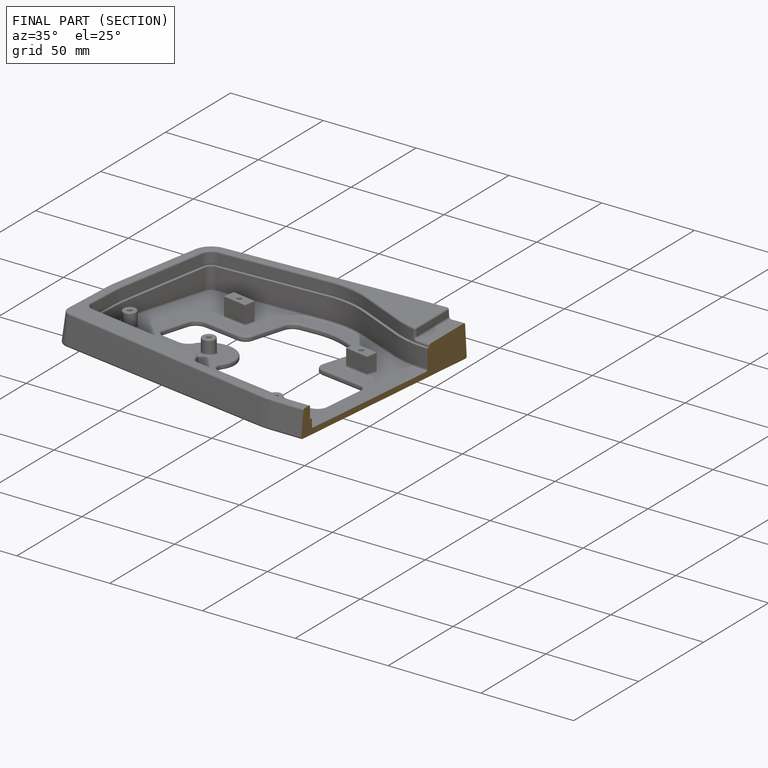
[diagram: finished part — half-section view (interior)]
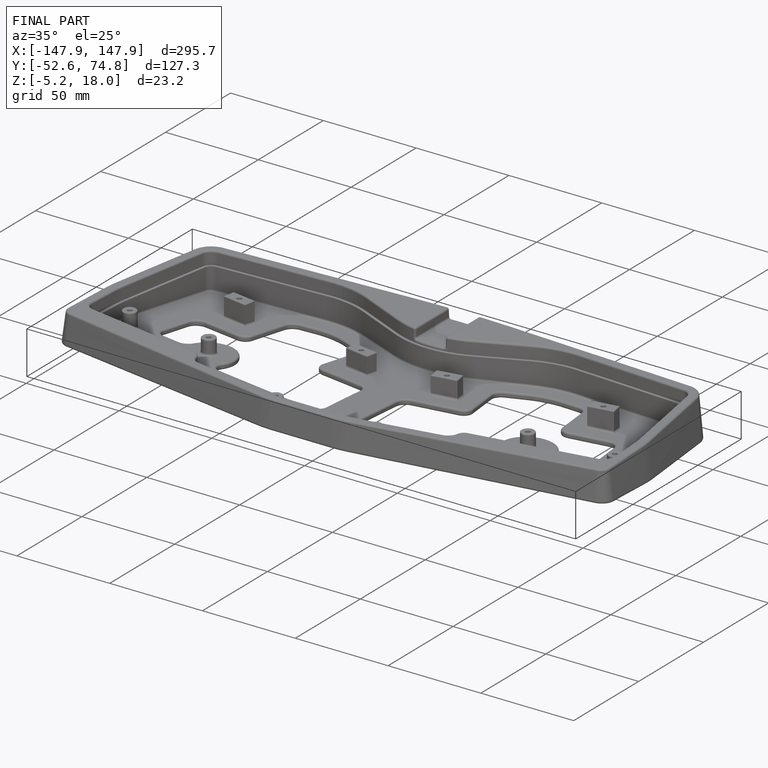
[diagram: finished part — iso view with bounding-box wireframe]
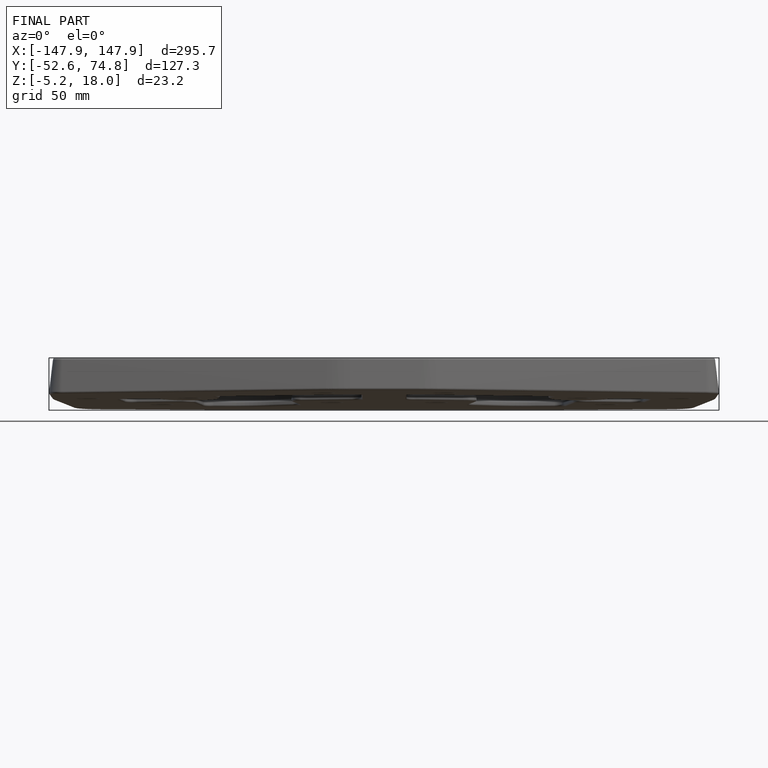
[diagram: finished part — front view with bounding-box wireframe]
